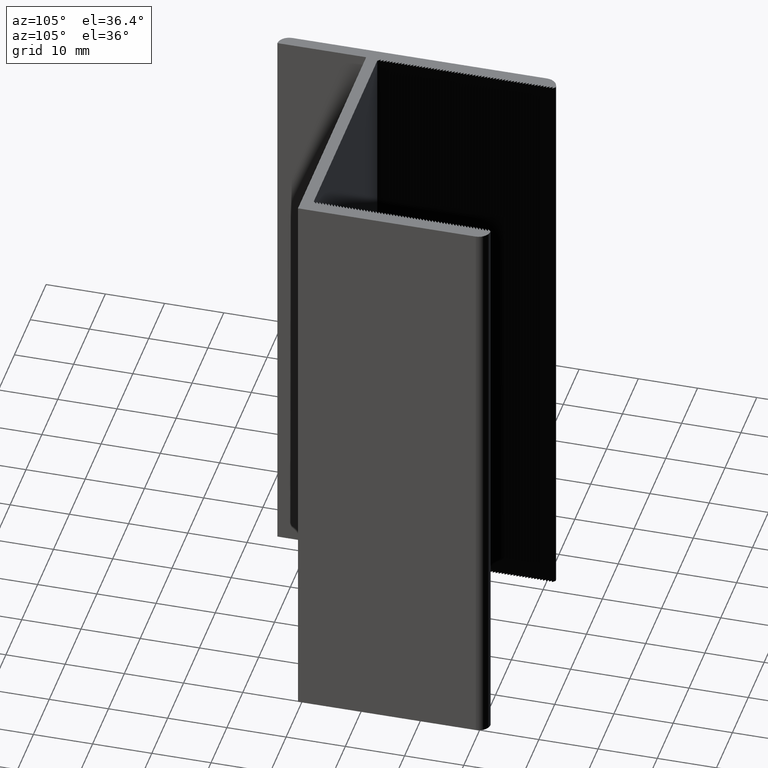
[diagram: clean part render]
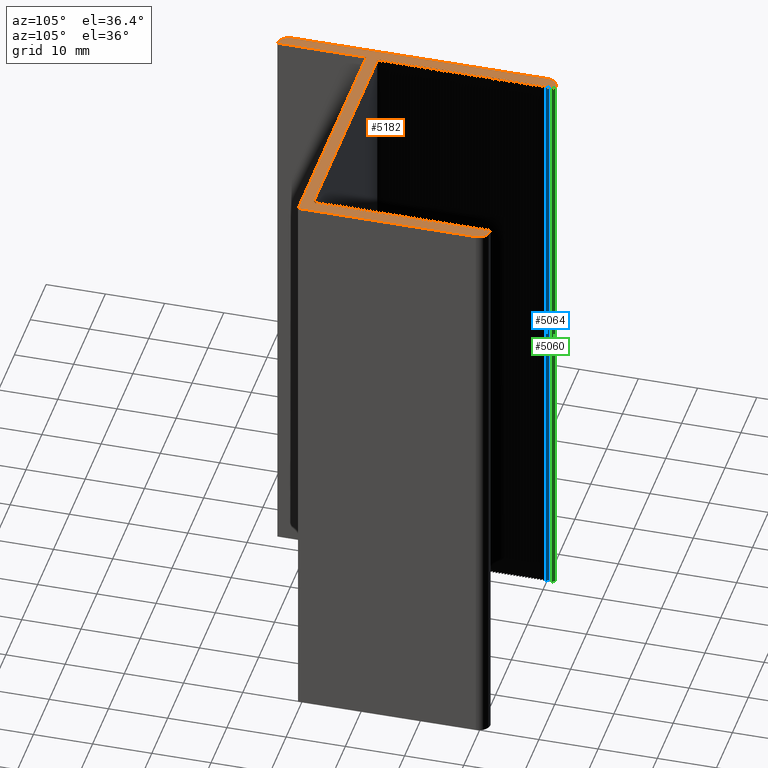
[diagram: same view with three faces highlighted in distinct colors, each labeled with its STEP entity id]
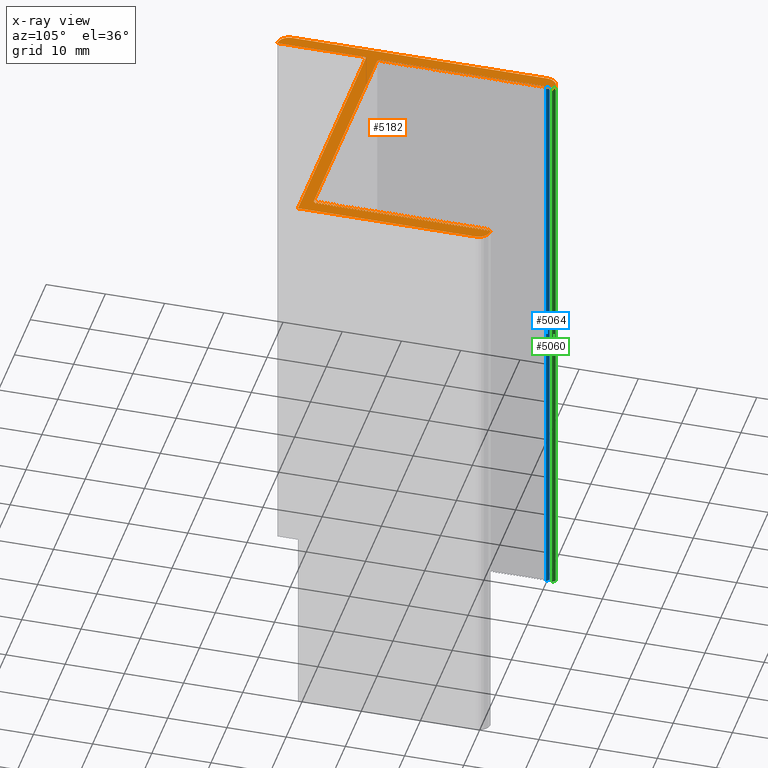
[diagram: x-ray of the same camera — body ghosted, the three highlighted faces saturated]
A machine part, auxiliary view with three faces highlighted in distinct colors.
The next image is the same camera in x-ray (body ghosted, the three faces saturated) — at least one of them is partly hidden behind the body in this view.
Their STEP definitions:

[orange] entity #5182 — the highlighted planar face has unit normal (0, 0, 1).
#16=CIRCLE('',#5305,2.);
#18=CIRCLE('',#5311,2.);
#20=CIRCLE('',#5315,2.);
#271=FACE_OUTER_BOUND('',#519,.T.);
#519=EDGE_LOOP('',(#4444,#4445,#4446,#4447,#4448,#4449,#4450,#4451,#4452,
#4453,#4454,#4455,#4456,#4457,#4458,#4459,#4460,#4461,#4462,#4463,#4464,
#4465,#4466,#4467,#4468,#4469,#4470,#4471,#4472,#4473,#4474,#4475,#4476,
#4477,#4478,#4479,#4480,#4481,#4482,#4483,#4484,#4485,#4486,#4487,#4488,
#4489,#4490,#4491,#4492,#4493,#4494,#4495,#4496,#4497,#4498,#4499,#4500,
#4501,#4502,#4503,#4504,#4505,#4506,#4507,#4508,#4509,#4510,#4511,#4512,
#4513,#4514,#4515,#4516,#4517,#4518,#4519,#4520,#4521,#4522,#4523,#4524,
#4525,#4526,#4527,#4528,#4529,#4530,#4531,#4532,#4533,#4534,#4535,#4536,
#4537,#4538,#4539,#4540,#4541,#4542,#4543,#4544,#4545,#4546,#4547,#4548,
#4549,#4550,#4551,#4552,#4553,#4554,#4555,#4556,#4557,#4558,#4559,#4560,
#4561,#4562,#4563,#4564,#4565,#4566,#4567,#4568,#4569,#4570,#4571,#4572,
#4573,#4574,#4575,#4576,#4577,#4578,#4579,#4580,#4581,#4582,#4583,#4584,
#4585,#4586,#4587,#4588,#4589,#4590,#4591,#4592,#4593,#4594,#4595,#4596,
#4597,#4598,#4599,#4600,#4601,#4602,#4603,#4604,#4605,#4606,#4607,#4608,
#4609,#4610,#4611,#4612,#4613,#4614,#4615,#4616,#4617,#4618,#4619,#4620,
#4621,#4622,#4623,#4624,#4625,#4626,#4627,#4628,#4629,#4630,#4631,#4632,
#4633,#4634,#4635,#4636,#4637,#4638,#4639,#4640,#4641,#4642,#4643,#4644,
#4645,#4646,#4647,#4648,#4649,#4650,#4651,#4652,#4653,#4654,#4655,#4656,
#4657,#4658,#4659,#4660,#4661,#4662,#4663,#4664,#4665,#4666,#4667,#4668,
#4669,#4670,#4671,#4672,#4673,#4674,#4675,#4676,#4677,#4678,#4679,#4680,
#4681,#4682,#4683,#4684,#4685,#4686,#4687,#4688,#4689));
#522=LINE('',#6689,#1254);
#525=LINE('',#6695,#1257);
#528=LINE('',#6701,#1260);
#531=LINE('',#6707,#1263);
#534=LINE('',#6713,#1266);
#537=LINE('',#6719,#1269);
#540=LINE('',#6725,#1272);
#543=LINE('',#6731,#1275);
#546=LINE('',#6737,#1278);
#549=LINE('',#6743,#1281);
#552=LINE('',#6749,#1284);
#555=LINE('',#6755,#1287);
#558=LINE('',#6761,#1290);
#561=LINE('',#6767,#1293);
#564=LINE('',#6773,#1296);
#567=LINE('',#6779,#1299);
#570=LINE('',#6785,#1302);
#573=LINE('',#6791,#1305);
#576=LINE('',#6797,#1308);
#579=LINE('',#6803,#1311);
#582=LINE('',#6809,#1314);
#585=LINE('',#6815,#1317);
#588=LINE('',#6821,#1320);
#591=LINE('',#6827,#1323);
#594=LINE('',#6833,#1326);
#597=LINE('',#6839,#1329);
#600=LINE('',#6845,#1332);
#603=LINE('',#6851,#1335);
#606=LINE('',#6857,#1338);
#609=LINE('',#6863,#1341);
#612=LINE('',#6869,#1344);
#615=LINE('',#6875,#1347);
#618=LINE('',#6881,#1350);
#621=LINE('',#6887,#1353);
#624=LINE('',#6893,#1356);
#627=LINE('',#6899,#1359);
#630=LINE('',#6905,#1362);
#633=LINE('',#6911,#1365);
#636=LINE('',#6917,#1368);
#639=LINE('',#6923,#1371);
#642=LINE('',#6929,#1374);
#645=LINE('',#6935,#1377);
#648=LINE('',#6941,#1380);
#651=LINE('',#6947,#1383);
#654=LINE('',#6953,#1386);
#657=LINE('',#6959,#1389);
#660=LINE('',#6965,#1392);
#663=LINE('',#6971,#1395);
#666=LINE('',#6977,#1398);
#669=LINE('',#6983,#1401);
#672=LINE('',#6989,#1404);
#675=LINE('',#6995,#1407);
#678=LINE('',#7001,#1410);
#681=LINE('',#7007,#1413);
#684=LINE('',#7013,#1416);
#687=LINE('',#7019,#1419);
#690=LINE('',#7025,#1422);
#693=LINE('',#7031,#1425);
#696=LINE('',#7037,#1428);
#699=LINE('',#7043,#1431);
#702=LINE('',#7049,#1434);
#705=LINE('',#7055,#1437);
#708=LINE('',#7061,#1440);
#711=LINE('',#7067,#1443);
#714=LINE('',#7073,#1446);
#717=LINE('',#7079,#1449);
#720=LINE('',#7085,#1452);
#723=LINE('',#7091,#1455);
#726=LINE('',#7097,#1458);
#729=LINE('',#7103,#1461);
#732=LINE('',#7109,#1464);
#735=LINE('',#7115,#1467);
#738=LINE('',#7121,#1470);
#741=LINE('',#7127,#1473);
#744=LINE('',#7133,#1476);
#747=LINE('',#7139,#1479);
#750=LINE('',#7145,#1482);
#753=LINE('',#7151,#1485);
#756=LINE('',#7157,#1488);
#759=LINE('',#7163,#1491);
#762=LINE('',#7169,#1494);
#765=LINE('',#7175,#1497);
#768=LINE('',#7181,#1500);
#771=LINE('',#7187,#1503);
#774=LINE('',#7193,#1506);
#777=LINE('',#7199,#1509);
#780=LINE('',#7205,#1512);
#783=LINE('',#7211,#1515);
#786=LINE('',#7217,#1518);
#789=LINE('',#7223,#1521);
#792=LINE('',#7229,#1524);
#795=LINE('',#7235,#1527);
#798=LINE('',#7241,#1530);
#801=LINE('',#7247,#1533);
#804=LINE('',#7253,#1536);
#807=LINE('',#7259,#1539);
#810=LINE('',#7265,#1542);
#813=LINE('',#7271,#1545);
#816=LINE('',#7277,#1548);
#819=LINE('',#7283,#1551);
#822=LINE('',#7289,#1554);
#825=LINE('',#7295,#1557);
#828=LINE('',#7301,#1560);
#831=LINE('',#7307,#1563);
#834=LINE('',#7313,#1566);
#837=LINE('',#7319,#1569);
#840=LINE('',#7325,#1572);
#843=LINE('',#7331,#1575);
#846=LINE('',#7337,#1578);
#849=LINE('',#7343,#1581);
#852=LINE('',#7349,#1584);
#855=LINE('',#7355,#1587);
#858=LINE('',#7361,#1590);
#861=LINE('',#7367,#1593);
#864=LINE('',#7373,#1596);
#867=LINE('',#7379,#1599);
#870=LINE('',#7385,#1602);
#873=LINE('',#7391,#1605);
#877=LINE('',#7403,#1609);
#880=LINE('',#7409,#1612);
#883=LINE('',#7415,#1615);
#887=LINE('',#7427,#1619);
#891=LINE('',#7439,#1623);
#894=LINE('',#7445,#1626);
#897=LINE('',#7451,#1629);
#900=LINE('',#7457,#1632);
#903=LINE('',#7463,#1635);
#906=LINE('',#7469,#1638);
#909=LINE('',#7475,#1641);
#912=LINE('',#7481,#1644);
#915=LINE('',#7487,#1647);
#918=LINE('',#7493,#1650);
#921=LINE('',#7499,#1653);
#924=LINE('',#7505,#1656);
#927=LINE('',#7511,#1659);
#930=LINE('',#7517,#1662);
#933=LINE('',#7523,#1665);
#936=LINE('',#7529,#1668);
#939=LINE('',#7535,#1671);
#942=LINE('',#7541,#1674);
#945=LINE('',#7547,#1677);
#948=LINE('',#7553,#1680);
#951=LINE('',#7559,#1683);
#954=LINE('',#7565,#1686);
#957=LINE('',#7571,#1689);
#960=LINE('',#7577,#1692);
#963=LINE('',#7583,#1695);
#966=LINE('',#7589,#1698);
#969=LINE('',#7595,#1701);
#972=LINE('',#7601,#1704);
#975=LINE('',#7607,#1707);
#978=LINE('',#7613,#1710);
#981=LINE('',#7619,#1713);
#984=LINE('',#7625,#1716);
#987=LINE('',#7631,#1719);
#990=LINE('',#7637,#1722);
#993=LINE('',#7643,#1725);
#996=LINE('',#7649,#1728);
#999=LINE('',#7655,#1731);
#1002=LINE('',#7661,#1734);
#1005=LINE('',#7667,#1737);
#1008=LINE('',#7673,#1740);
#1011=LINE('',#7679,#1743);
#1014=LINE('',#7685,#1746);
#1017=LINE('',#7691,#1749);
#1020=LINE('',#7697,#1752);
#1023=LINE('',#7703,#1755);
#1026=LINE('',#7709,#1758);
#1029=LINE('',#7715,#1761);
#1032=LINE('',#7721,#1764);
#1035=LINE('',#7727,#1767);
#1038=LINE('',#7733,#1770);
#1041=LINE('',#7739,#1773);
#1044=LINE('',#7745,#1776);
#1047=LINE('',#7751,#1779);
#1050=LINE('',#7757,#1782);
#1053=LINE('',#7763,#1785);
#1056=LINE('',#7769,#1788);
#1059=LINE('',#7775,#1791);
#1062=LINE('',#7781,#1794);
#1065=LINE('',#7787,#1797);
#1068=LINE('',#7793,#1800);
#1071=LINE('',#7799,#1803);
#1074=LINE('',#7805,#1806);
#1077=LINE('',#7811,#1809);
#1080=LINE('',#7817,#1812);
#1083=LINE('',#7823,#1815);
#1086=LINE('',#7829,#1818);
#1089=LINE('',#7835,#1821);
#1092=LINE('',#7841,#1824);
#1095=LINE('',#7847,#1827);
#1098=LINE('',#7853,#1830);
#1101=LINE('',#7859,#1833);
#1104=LINE('',#7865,#1836);
#1107=LINE('',#7871,#1839);
#1110=LINE('',#7877,#1842);
#1113=LINE('',#7883,#1845);
#1116=LINE('',#7889,#1848);
#1119=LINE('',#7895,#1851);
#1122=LINE('',#7901,#1854);
#1125=LINE('',#7907,#1857);
#1128=LINE('',#7913,#1860);
#1131=LINE('',#7919,#1863);
#1134=LINE('',#7925,#1866);
#1137=LINE('',#7931,#1869);
#1140=LINE('',#7937,#1872);
#1143=LINE('',#7943,#1875);
#1146=LINE('',#7949,#1878);
#1149=LINE('',#7955,#1881);
#1152=LINE('',#7961,#1884);
#1155=LINE('',#7967,#1887);
#1158=LINE('',#7973,#1890);
#1161=LINE('',#7979,#1893);
#1164=LINE('',#7985,#1896);
#1167=LINE('',#7991,#1899);
#1170=LINE('',#7997,#1902);
#1173=LINE('',#8003,#1905);
#1176=LINE('',#8009,#1908);
#1179=LINE('',#8015,#1911);
#1182=LINE('',#8021,#1914);
#1185=LINE('',#8027,#1917);
#1188=LINE('',#8033,#1920);
#1191=LINE('',#8039,#1923);
#1194=LINE('',#8045,#1926);
#1197=LINE('',#8051,#1929);
#1200=LINE('',#8057,#1932);
#1203=LINE('',#8063,#1935);
#1206=LINE('',#8069,#1938);
#1209=LINE('',#8075,#1941);
#1212=LINE('',#8081,#1944);
#1215=LINE('',#8087,#1947);
#1218=LINE('',#8093,#1950);
#1221=LINE('',#8099,#1953);
#1224=LINE('',#8105,#1956);
#1227=LINE('',#8111,#1959);
#1230=LINE('',#8117,#1962);
#1233=LINE('',#8123,#1965);
#1236=LINE('',#8129,#1968);
#1239=LINE('',#8135,#1971);
#1242=LINE('',#8141,#1974);
#1245=LINE('',#8147,#1977);
#1248=LINE('',#8153,#1980);
#1251=LINE('',#8157,#1983);
#1254=VECTOR('',#5445,0.499999999999998);
#1257=VECTOR('',#5450,0.707106781186548);
#1260=VECTOR('',#5455,0.499999999999998);
#1263=VECTOR('',#5460,0.707106781186545);
#1266=VECTOR('',#5465,0.499999999999998);
#1269=VECTOR('',#5470,0.707106781186548);
#1272=VECTOR('',#5475,0.499999999999998);
#1275=VECTOR('',#5480,0.707106781186545);
#1278=VECTOR('',#5485,0.499999999999998);
#1281=VECTOR('',#5490,0.707106781186545);
#1284=VECTOR('',#5495,0.499999999999998);
#1287=VECTOR('',#5500,0.707106781186548);
#1290=VECTOR('',#5505,0.499999999999998);
#1293=VECTOR('',#5510,0.707106781186545);
#1296=VECTOR('',#5515,0.499999999999998);
#1299=VECTOR('',#5520,0.707106781186548);
#1302=VECTOR('',#5525,0.499999999999998);
#1305=VECTOR('',#5530,0.707106781186542);
#1308=VECTOR('',#5535,0.499999999999998);
#1311=VECTOR('',#5540,0.707106781186545);
#1314=VECTOR('',#5545,0.499999999999998);
#1317=VECTOR('',#5550,0.707106781186547);
#1320=VECTOR('',#5555,0.499999999999998);
#1323=VECTOR('',#5560,0.707106781186543);
#1326=VECTOR('',#5565,0.499999999999998);
#1329=VECTOR('',#5570,0.707106781186547);
#1332=VECTOR('',#5575,0.499999999999998);
#1335=VECTOR('',#5580,0.707106781186543);
#1338=VECTOR('',#5585,0.499999999999998);
#1341=VECTOR('',#5590,0.70710678118655);
#1344=VECTOR('',#5595,0.499999999999998);
#1347=VECTOR('',#5600,0.707106781186543);
#1350=VECTOR('',#5605,0.499999999999998);
#1353=VECTOR('',#5610,0.707106781186543);
#1356=VECTOR('',#5615,0.499999999999998);
#1359=VECTOR('',#5620,0.70710678118655);
#1362=VECTOR('',#5625,0.499999999999998);
#1365=VECTOR('',#5630,0.707106781186545);
#1368=VECTOR('',#5635,0.499999999999998);
#1371=VECTOR('',#5640,0.707106781186545);
#1374=VECTOR('',#5645,0.499999999999998);
#1377=VECTOR('',#5650,0.707106781186547);
#1380=VECTOR('',#5655,0.499999999999998);
#1383=VECTOR('',#5660,0.707106781186545);
#1386=VECTOR('',#5665,0.499999999999998);
#1389=VECTOR('',#5670,0.707106781186547);
#1392=VECTOR('',#5675,0.499999999999998);
#1395=VECTOR('',#5680,0.707106781186545);
#1398=VECTOR('',#5685,0.499999999999998);
#1401=VECTOR('',#5690,0.707106781186545);
#1404=VECTOR('',#5695,0.499999999999998);
#1407=VECTOR('',#5700,0.707106781186547);
#1410=VECTOR('',#5705,0.499999999999998);
#1413=VECTOR('',#5710,0.707106781186545);
#1416=VECTOR('',#5715,0.499999999999998);
#1419=VECTOR('',#5720,0.707106781186547);
#1422=VECTOR('',#5725,0.499999999999998);
#1425=VECTOR('',#5730,0.707106781186545);
#1428=VECTOR('',#5735,0.499999999999998);
#1431=VECTOR('',#5740,0.707106781186547);
#1434=VECTOR('',#5745,0.499999999999998);
#1437=VECTOR('',#5750,0.707106781186545);
#1440=VECTOR('',#5755,0.499999999999998);
#1443=VECTOR('',#5760,0.707106781186547);
#1446=VECTOR('',#5765,0.499999999999998);
#1449=VECTOR('',#5770,0.707106781186545);
#1452=VECTOR('',#5775,0.499999999999998);
#1455=VECTOR('',#5780,0.707106781186545);
#1458=VECTOR('',#5785,0.499999999999998);
#1461=VECTOR('',#5790,0.707106781186545);
#1464=VECTOR('',#5795,0.499999999999998);
#1467=VECTOR('',#5800,0.707106781186545);
#1470=VECTOR('',#5805,0.499999999999998);
#1473=VECTOR('',#5810,0.707106781186548);
#1476=VECTOR('',#5815,0.499999999999998);
#1479=VECTOR('',#5820,0.707106781186545);
#1482=VECTOR('',#5825,0.499999999999998);
#1485=VECTOR('',#5830,0.707106781186545);
#1488=VECTOR('',#5835,0.499999999999998);
#1491=VECTOR('',#5840,0.707106781186548);
#1494=VECTOR('',#5845,0.499999999999998);
#1497=VECTOR('',#5850,0.707106781186542);
#1500=VECTOR('',#5855,0.499999999999998);
#1503=VECTOR('',#5860,0.707106781186545);
#1506=VECTOR('',#5865,0.499999999999998);
#1509=VECTOR('',#5870,0.707106781186545);
#1512=VECTOR('',#5875,0.499999999999998);
#1515=VECTOR('',#5880,0.707106781186545);
#1518=VECTOR('',#5885,0.499999999999998);
#1521=VECTOR('',#5890,0.707106781186548);
#1524=VECTOR('',#5895,0.499999999999998);
#1527=VECTOR('',#5900,0.707106781186545);
#1530=VECTOR('',#5905,0.499999999999998);
#1533=VECTOR('',#5910,0.707106781186545);
#1536=VECTOR('',#5915,0.499999999999998);
#1539=VECTOR('',#5920,0.707106781186545);
#1542=VECTOR('',#5925,0.499999999999998);
#1545=VECTOR('',#5930,0.707106781186545);
#1548=VECTOR('',#5935,0.499999999999998);
#1551=VECTOR('',#5940,0.707106781186548);
#1554=VECTOR('',#5945,0.499999999999998);
#1557=VECTOR('',#5950,0.707106781186545);
#1560=VECTOR('',#5955,0.499999999999998);
#1563=VECTOR('',#5960,0.707106781186545);
#1566=VECTOR('',#5965,0.499999999999998);
#1569=VECTOR('',#5970,0.707106781186545);
#1572=VECTOR('',#5975,0.499999999999998);
#1575=VECTOR('',#5980,0.707106781186545);
#1578=VECTOR('',#5985,0.499999999999998);
#1581=VECTOR('',#5990,0.707106781186548);
#1584=VECTOR('',#5995,0.499999999999998);
#1587=VECTOR('',#6000,0.707106781186548);
#1590=VECTOR('',#6005,0.499999999999998);
#1593=VECTOR('',#6010,0.707106781186545);
#1596=VECTOR('',#6015,0.499999999999998);
#1599=VECTOR('',#6020,0.707106781186545);
#1602=VECTOR('',#6025,0.499999999999998);
#1605=VECTOR('',#6030,0.707106781186548);
#1609=VECTOR('',#6042,30.);
#1612=VECTOR('',#6047,43.);
#1615=VECTOR('',#6052,15.);
#1619=VECTOR('',#6064,43.);
#1623=VECTOR('',#6076,0.707106781186545);
#1626=VECTOR('',#6081,0.499999999999998);
#1629=VECTOR('',#6086,0.707106781186545);
#1632=VECTOR('',#6091,0.499999999999998);
#1635=VECTOR('',#6096,0.707106781186545);
#1638=VECTOR('',#6101,0.499999999999998);
#1641=VECTOR('',#6106,0.707106781186548);
#1644=VECTOR('',#6111,0.499999999999998);
#1647=VECTOR('',#6116,0.707106781186548);
#1650=VECTOR('',#6121,0.499999999999998);
#1653=VECTOR('',#6126,0.707106781186545);
#1656=VECTOR('',#6131,0.499999999999998);
#1659=VECTOR('',#6136,0.707106781186545);
#1662=VECTOR('',#6141,0.499999999999998);
#1665=VECTOR('',#6146,0.707106781186548);
#1668=VECTOR('',#6151,0.499999999999998);
#1671=VECTOR('',#6156,0.707106781186545);
#1674=VECTOR('',#6161,0.499999999999998);
#1677=VECTOR('',#6166,0.707106781186548);
#1680=VECTOR('',#6171,0.499999999999998);
#1683=VECTOR('',#6176,0.707106781186545);
#1686=VECTOR('',#6181,0.499999999999998);
#1689=VECTOR('',#6186,0.707106781186545);
#1692=VECTOR('',#6191,0.499999999999998);
#1695=VECTOR('',#6196,0.707106781186548);
#1698=VECTOR('',#6201,0.499999999999998);
#1701=VECTOR('',#6206,0.707106781186545);
#1704=VECTOR('',#6211,0.499999999999998);
#1707=VECTOR('',#6216,0.707106781186548);
#1710=VECTOR('',#6221,0.499999999999998);
#1713=VECTOR('',#6226,0.707106781186545);
#1716=VECTOR('',#6231,0.499999999999998);
#1719=VECTOR('',#6236,0.707106781186545);
#1722=VECTOR('',#6241,0.499999999999998);
#1725=VECTOR('',#6246,0.707106781186548);
#1728=VECTOR('',#6251,0.499999999999998);
#1731=VECTOR('',#6256,0.707106781186545);
#1734=VECTOR('',#6261,0.499999999999998);
#1737=VECTOR('',#6266,0.707106781186548);
#1740=VECTOR('',#6271,0.499999999999998);
#1743=VECTOR('',#6276,0.707106781186545);
#1746=VECTOR('',#6281,0.499999999999998);
#1749=VECTOR('',#6286,0.707106781186545);
#1752=VECTOR('',#6291,0.499999999999998);
#1755=VECTOR('',#6296,0.707106781186548);
#1758=VECTOR('',#6301,0.499999999999998);
#1761=VECTOR('',#6306,0.707106781186545);
#1764=VECTOR('',#6311,0.499999999999998);
#1767=VECTOR('',#6316,0.707106781186548);
#1770=VECTOR('',#6321,0.499999999999998);
#1773=VECTOR('',#6326,0.707106781186545);
#1776=VECTOR('',#6331,0.499999999999998);
#1779=VECTOR('',#6336,0.707106781186545);
#1782=VECTOR('',#6341,0.499999999999998);
#1785=VECTOR('',#6346,0.707106781186548);
#1788=VECTOR('',#6351,0.499999999999998);
#1791=VECTOR('',#6356,0.707106781186545);
#1794=VECTOR('',#6361,0.499999999999998);
#1797=VECTOR('',#6366,0.707106781186548);
#1800=VECTOR('',#6371,0.499999999999998);
#1803=VECTOR('',#6376,0.707106781186545);
#1806=VECTOR('',#6381,0.499999999999998);
#1809=VECTOR('',#6386,0.707106781186545);
#1812=VECTOR('',#6391,0.499999999999998);
#1815=VECTOR('',#6396,0.707106781186548);
#1818=VECTOR('',#6401,0.499999999999998);
#1821=VECTOR('',#6406,0.707106781186545);
#1824=VECTOR('',#6411,0.499999999999998);
#1827=VECTOR('',#6416,0.707106781186548);
#1830=VECTOR('',#6421,0.499999999999989);
#1833=VECTOR('',#6426,0.707106781186539);
#1836=VECTOR('',#6431,0.499999999999989);
#1839=VECTOR('',#6436,0.707106781186539);
#1842=VECTOR('',#6441,0.499999999999989);
#1845=VECTOR('',#6446,0.707106781186542);
#1848=VECTOR('',#6451,0.499999999999989);
#1851=VECTOR('',#6456,0.707106781186539);
#1854=VECTOR('',#6461,0.499999999999989);
#1857=VECTOR('',#6466,0.707106781186542);
#1860=VECTOR('',#6471,0.499999999999989);
#1863=VECTOR('',#6476,0.707106781186539);
#1866=VECTOR('',#6481,0.499999999999989);
#1869=VECTOR('',#6486,0.707106781186542);
#1872=VECTOR('',#6491,0.499999999999989);
#1875=VECTOR('',#6496,0.707106781186539);
#1878=VECTOR('',#6501,0.499999999999989);
#1881=VECTOR('',#6506,0.707106781186539);
#1884=VECTOR('',#6511,0.499999999999989);
#1887=VECTOR('',#6516,0.707106781186542);
#1890=VECTOR('',#6521,0.499999999999989);
#1893=VECTOR('',#6526,0.707106781186539);
#1896=VECTOR('',#6531,0.499999999999989);
#1899=VECTOR('',#6536,0.707106781186542);
#1902=VECTOR('',#6541,0.499999999999989);
#1905=VECTOR('',#6546,0.707106781186539);
#1908=VECTOR('',#6551,0.499999999999989);
#1911=VECTOR('',#6556,0.707106781186542);
#1914=VECTOR('',#6561,0.499999999999989);
#1917=VECTOR('',#6566,0.707106781186539);
#1920=VECTOR('',#6571,0.499999999999989);
#1923=VECTOR('',#6576,0.707106781186539);
#1926=VECTOR('',#6581,0.499999999999989);
#1929=VECTOR('',#6586,0.707106781186542);
#1932=VECTOR('',#6591,0.499999999999989);
#1935=VECTOR('',#6596,0.707106781186539);
#1938=VECTOR('',#6601,0.499999999999989);
#1941=VECTOR('',#6606,0.707106781186542);
#1944=VECTOR('',#6611,0.499999999999989);
#1947=VECTOR('',#6616,0.707106781186539);
#1950=VECTOR('',#6621,0.499999999999989);
#1953=VECTOR('',#6626,0.707106781186539);
#1956=VECTOR('',#6631,0.499999999999989);
#1959=VECTOR('',#6636,0.707106781186542);
#1962=VECTOR('',#6641,0.499999999999989);
#1965=VECTOR('',#6646,0.707106781186539);
#1968=VECTOR('',#6651,0.499999999999989);
#1971=VECTOR('',#6656,0.707106781186542);
#1974=VECTOR('',#6661,0.499999999999989);
#1977=VECTOR('',#6666,0.707106781186539);
#1980=VECTOR('',#6671,40.);
#1983=VECTOR('',#6676,0.707106781186545);
#1986=VERTEX_POINT('',#6686);
#1987=VERTEX_POINT('',#6688);
#1989=VERTEX_POINT('',#6694);
#1991=VERTEX_POINT('',#6700);
#1993=VERTEX_POINT('',#6706);
#1995=VERTEX_POINT('',#6712);
#1997=VERTEX_POINT('',#6718);
#1999=VERTEX_POINT('',#6724);
#2001=VERTEX_POINT('',#6730);
#2003=VERTEX_POINT('',#6736);
#2005=VERTEX_POINT('',#6742);
#2007=VERTEX_POINT('',#6748);
#2009=VERTEX_POINT('',#6754);
#2011=VERTEX_POINT('',#6760);
#2013=VERTEX_POINT('',#6766);
#2015=VERTEX_POINT('',#6772);
#2017=VERTEX_POINT('',#6778);
#2019=VERTEX_POINT('',#6784);
#2021=VERTEX_POINT('',#6790);
#2023=VERTEX_POINT('',#6796);
#2025=VERTEX_POINT('',#6802);
#2027=VERTEX_POINT('',#6808);
#2029=VERTEX_POINT('',#6814);
#2031=VERTEX_POINT('',#6820);
#2033=VERTEX_POINT('',#6826);
#2035=VERTEX_POINT('',#6832);
#2037=VERTEX_POINT('',#6838);
#2039=VERTEX_POINT('',#6844);
#2041=VERTEX_POINT('',#6850);
#2043=VERTEX_POINT('',#6856);
#2045=VERTEX_POINT('',#6862);
#2047=VERTEX_POINT('',#6868);
#2049=VERTEX_POINT('',#6874);
#2051=VERTEX_POINT('',#6880);
#2053=VERTEX_POINT('',#6886);
#2055=VERTEX_POINT('',#6892);
#2057=VERTEX_POINT('',#6898);
#2059=VERTEX_POINT('',#6904);
#2061=VERTEX_POINT('',#6910);
#2063=VERTEX_POINT('',#6916);
#2065=VERTEX_POINT('',#6922);
#2067=VERTEX_POINT('',#6928);
#2069=VERTEX_POINT('',#6934);
#2071=VERTEX_POINT('',#6940);
#2073=VERTEX_POINT('',#6946);
#2075=VERTEX_POINT('',#6952);
#2077=VERTEX_POINT('',#6958);
#2079=VERTEX_POINT('',#6964);
#2081=VERTEX_POINT('',#6970);
#2083=VERTEX_POINT('',#6976);
#2085=VERTEX_POINT('',#6982);
#2087=VERTEX_POINT('',#6988);
#2089=VERTEX_POINT('',#6994);
#2091=VERTEX_POINT('',#7000);
#2093=VERTEX_POINT('',#7006);
#2095=VERTEX_POINT('',#7012);
#2097=VERTEX_POINT('',#7018);
#2099=VERTEX_POINT('',#7024);
#2101=VERTEX_POINT('',#7030);
#2103=VERTEX_POINT('',#7036);
#2105=VERTEX_POINT('',#7042);
#2107=VERTEX_POINT('',#7048);
#2109=VERTEX_POINT('',#7054);
#2111=VERTEX_POINT('',#7060);
#2113=VERTEX_POINT('',#7066);
#2115=VERTEX_POINT('',#7072);
#2117=VERTEX_POINT('',#7078);
#2119=VERTEX_POINT('',#7084);
#2121=VERTEX_POINT('',#7090);
#2123=VERTEX_POINT('',#7096);
#2125=VERTEX_POINT('',#7102);
#2127=VERTEX_POINT('',#7108);
#2129=VERTEX_POINT('',#7114);
#2131=VERTEX_POINT('',#7120);
#2133=VERTEX_POINT('',#7126);
#2135=VERTEX_POINT('',#7132);
#2137=VERTEX_POINT('',#7138);
#2139=VERTEX_POINT('',#7144);
#2141=VERTEX_POINT('',#7150);
#2143=VERTEX_POINT('',#7156);
#2145=VERTEX_POINT('',#7162);
#2147=VERTEX_POINT('',#7168);
#2149=VERTEX_POINT('',#7174);
#2151=VERTEX_POINT('',#7180);
#2153=VERTEX_POINT('',#7186);
#2155=VERTEX_POINT('',#7192);
#2157=VERTEX_POINT('',#7198);
#2159=VERTEX_POINT('',#7204);
#2161=VERTEX_POINT('',#7210);
#2163=VERTEX_POINT('',#7216);
#2165=VERTEX_POINT('',#7222);
#2167=VERTEX_POINT('',#7228);
#2169=VERTEX_POINT('',#7234);
#2171=VERTEX_POINT('',#7240);
#2173=VERTEX_POINT('',#7246);
#2175=VERTEX_POINT('',#7252);
#2177=VERTEX_POINT('',#7258);
#2179=VERTEX_POINT('',#7264);
#2181=VERTEX_POINT('',#7270);
#2183=VERTEX_POINT('',#7276);
#2185=VERTEX_POINT('',#7282);
#2187=VERTEX_POINT('',#7288);
#2189=VERTEX_POINT('',#7294);
#2191=VERTEX_POINT('',#7300);
#2193=VERTEX_POINT('',#7306);
#2195=VERTEX_POINT('',#7312);
#2197=VERTEX_POINT('',#7318);
#2199=VERTEX_POINT('',#7324);
#2201=VERTEX_POINT('',#7330);
#2203=VERTEX_POINT('',#7336);
#2205=VERTEX_POINT('',#7342);
#2207=VERTEX_POINT('',#7348);
#2209=VERTEX_POINT('',#7354);
#2211=VERTEX_POINT('',#7360);
#2213=VERTEX_POINT('',#7366);
#2215=VERTEX_POINT('',#7372);
#2217=VERTEX_POINT('',#7378);
#2219=VERTEX_POINT('',#7384);
#2221=VERTEX_POINT('',#7390);
#2223=VERTEX_POINT('',#7396);
#2225=VERTEX_POINT('',#7402);
#2227=VERTEX_POINT('',#7408);
#2229=VERTEX_POINT('',#7414);
#2231=VERTEX_POINT('',#7420);
#2233=VERTEX_POINT('',#7426);
#2235=VERTEX_POINT('',#7432);
#2237=VERTEX_POINT('',#7438);
#2239=VERTEX_POINT('',#7444);
#2241=VERTEX_POINT('',#7450);
#2243=VERTEX_POINT('',#7456);
#2245=VERTEX_POINT('',#7462);
#2247=VERTEX_POINT('',#7468);
#2249=VERTEX_POINT('',#7474);
#2251=VERTEX_POINT('',#7480);
#2253=VERTEX_POINT('',#7486);
#2255=VERTEX_POINT('',#7492);
#2257=VERTEX_POINT('',#7498);
#2259=VERTEX_POINT('',#7504);
#2261=VERTEX_POINT('',#7510);
#2263=VERTEX_POINT('',#7516);
#2265=VERTEX_POINT('',#7522);
#2267=VERTEX_POINT('',#7528);
#2269=VERTEX_POINT('',#7534);
#2271=VERTEX_POINT('',#7540);
#2273=VERTEX_POINT('',#7546);
#2275=VERTEX_POINT('',#7552);
#2277=VERTEX_POINT('',#7558);
#2279=VERTEX_POINT('',#7564);
#2281=VERTEX_POINT('',#7570);
#2283=VERTEX_POINT('',#7576);
#2285=VERTEX_POINT('',#7582);
#2287=VERTEX_POINT('',#7588);
#2289=VERTEX_POINT('',#7594);
#2291=VERTEX_POINT('',#7600);
#2293=VERTEX_POINT('',#7606);
#2295=VERTEX_POINT('',#7612);
#2297=VERTEX_POINT('',#7618);
#2299=VERTEX_POINT('',#7624);
#2301=VERTEX_POINT('',#7630);
#2303=VERTEX_POINT('',#7636);
#2305=VERTEX_POINT('',#7642);
#2307=VERTEX_POINT('',#7648);
#2309=VERTEX_POINT('',#7654);
#2311=VERTEX_POINT('',#7660);
#2313=VERTEX_POINT('',#7666);
#2315=VERTEX_POINT('',#7672);
#2317=VERTEX_POINT('',#7678);
#2319=VERTEX_POINT('',#7684);
#2321=VERTEX_POINT('',#7690);
#2323=VERTEX_POINT('',#7696);
#2325=VERTEX_POINT('',#7702);
#2327=VERTEX_POINT('',#7708);
#2329=VERTEX_POINT('',#7714);
#2331=VERTEX_POINT('',#7720);
#2333=VERTEX_POINT('',#7726);
#2335=VERTEX_POINT('',#7732);
#2337=VERTEX_POINT('',#7738);
#2339=VERTEX_POINT('',#7744);
#2341=VERTEX_POINT('',#7750);
#2343=VERTEX_POINT('',#7756);
#2345=VERTEX_POINT('',#7762);
#2347=VERTEX_POINT('',#7768);
#2349=VERTEX_POINT('',#7774);
#2351=VERTEX_POINT('',#7780);
#2353=VERTEX_POINT('',#7786);
#2355=VERTEX_POINT('',#7792);
#2357=VERTEX_POINT('',#7798);
#2359=VERTEX_POINT('',#7804);
#2361=VERTEX_POINT('',#7810);
#2363=VERTEX_POINT('',#7816);
#2365=VERTEX_POINT('',#7822);
#2367=VERTEX_POINT('',#7828);
#2369=VERTEX_POINT('',#7834);
#2371=VERTEX_POINT('',#7840);
#2373=VERTEX_POINT('',#7846);
#2375=VERTEX_POINT('',#7852);
#2377=VERTEX_POINT('',#7858);
#2379=VERTEX_POINT('',#7864);
#2381=VERTEX_POINT('',#7870);
#2383=VERTEX_POINT('',#7876);
#2385=VERTEX_POINT('',#7882);
#2387=VERTEX_POINT('',#7888);
#2389=VERTEX_POINT('',#7894);
#2391=VERTEX_POINT('',#7900);
#2393=VERTEX_POINT('',#7906);
#2395=VERTEX_POINT('',#7912);
#2397=VERTEX_POINT('',#7918);
#2399=VERTEX_POINT('',#7924);
#2401=VERTEX_POINT('',#7930);
#2403=VERTEX_POINT('',#7936);
#2405=VERTEX_POINT('',#7942);
#2407=VERTEX_POINT('',#7948);
#2409=VERTEX_POINT('',#7954);
#2411=VERTEX_POINT('',#7960);
#2413=VERTEX_POINT('',#7966);
#2415=VERTEX_POINT('',#7972);
#2417=VERTEX_POINT('',#7978);
#2419=VERTEX_POINT('',#7984);
#2421=VERTEX_POINT('',#7990);
#2423=VERTEX_POINT('',#7996);
#2425=VERTEX_POINT('',#8002);
#2427=VERTEX_POINT('',#8008);
#2429=VERTEX_POINT('',#8014);
#2431=VERTEX_POINT('',#8020);
#2433=VERTEX_POINT('',#8026);
#2435=VERTEX_POINT('',#8032);
#2437=VERTEX_POINT('',#8038);
#2439=VERTEX_POINT('',#8044);
#2441=VERTEX_POINT('',#8050);
#2443=VERTEX_POINT('',#8056);
#2445=VERTEX_POINT('',#8062);
#2447=VERTEX_POINT('',#8068);
#2449=VERTEX_POINT('',#8074);
#2451=VERTEX_POINT('',#8080);
#2453=VERTEX_POINT('',#8086);
#2455=VERTEX_POINT('',#8092);
#2457=VERTEX_POINT('',#8098);
#2459=VERTEX_POINT('',#8104);
#2461=VERTEX_POINT('',#8110);
#2463=VERTEX_POINT('',#8116);
#2465=VERTEX_POINT('',#8122);
#2467=VERTEX_POINT('',#8128);
#2469=VERTEX_POINT('',#8134);
#2471=VERTEX_POINT('',#8140);
#2473=VERTEX_POINT('',#8146);
#2475=VERTEX_POINT('',#8152);
#2478=EDGE_CURVE('',#1987,#1986,#522,.T.);
#2481=EDGE_CURVE('',#1989,#1987,#525,.T.);
#2484=EDGE_CURVE('',#1991,#1989,#528,.T.);
#2487=EDGE_CURVE('',#1993,#1991,#531,.T.);
#2490=EDGE_CURVE('',#1995,#1993,#534,.T.);
#2493=EDGE_CURVE('',#1997,#1995,#537,.T.);
#2496=EDGE_CURVE('',#1999,#1997,#540,.T.);
#2499=EDGE_CURVE('',#2001,#1999,#543,.T.);
#2502=EDGE_CURVE('',#2003,#2001,#546,.T.);
#2505=EDGE_CURVE('',#2005,#2003,#549,.T.);
#2508=EDGE_CURVE('',#2007,#2005,#552,.T.);
#2511=EDGE_CURVE('',#2009,#2007,#555,.T.);
#2514=EDGE_CURVE('',#2011,#2009,#558,.T.);
#2517=EDGE_CURVE('',#2013,#2011,#561,.T.);
#2520=EDGE_CURVE('',#2015,#2013,#564,.T.);
#2523=EDGE_CURVE('',#2017,#2015,#567,.T.);
#2526=EDGE_CURVE('',#2019,#2017,#570,.T.);
#2529=EDGE_CURVE('',#2021,#2019,#573,.T.);
#2532=EDGE_CURVE('',#2023,#2021,#576,.T.);
#2535=EDGE_CURVE('',#2025,#2023,#579,.T.);
#2538=EDGE_CURVE('',#2027,#2025,#582,.T.);
#2541=EDGE_CURVE('',#2029,#2027,#585,.T.);
#2544=EDGE_CURVE('',#2031,#2029,#588,.T.);
#2547=EDGE_CURVE('',#2033,#2031,#591,.T.);
#2550=EDGE_CURVE('',#2035,#2033,#594,.T.);
#2553=EDGE_CURVE('',#2037,#2035,#597,.T.);
#2556=EDGE_CURVE('',#2039,#2037,#600,.T.);
#2559=EDGE_CURVE('',#2041,#2039,#603,.T.);
#2562=EDGE_CURVE('',#2043,#2041,#606,.T.);
#2565=EDGE_CURVE('',#2045,#2043,#609,.T.);
#2568=EDGE_CURVE('',#2047,#2045,#612,.T.);
#2571=EDGE_CURVE('',#2049,#2047,#615,.T.);
#2574=EDGE_CURVE('',#2051,#2049,#618,.T.);
#2577=EDGE_CURVE('',#2053,#2051,#621,.T.);
#2580=EDGE_CURVE('',#2055,#2053,#624,.T.);
#2583=EDGE_CURVE('',#2057,#2055,#627,.T.);
#2586=EDGE_CURVE('',#2059,#2057,#630,.T.);
#2589=EDGE_CURVE('',#2061,#2059,#633,.T.);
#2592=EDGE_CURVE('',#2063,#2061,#636,.T.);
#2595=EDGE_CURVE('',#2065,#2063,#639,.T.);
#2598=EDGE_CURVE('',#2067,#2065,#642,.T.);
#2601=EDGE_CURVE('',#2069,#2067,#645,.T.);
#2604=EDGE_CURVE('',#2071,#2069,#648,.T.);
#2607=EDGE_CURVE('',#2073,#2071,#651,.T.);
#2610=EDGE_CURVE('',#2075,#2073,#654,.T.);
#2613=EDGE_CURVE('',#2077,#2075,#657,.T.);
#2616=EDGE_CURVE('',#2079,#2077,#660,.T.);
#2619=EDGE_CURVE('',#2081,#2079,#663,.T.);
#2622=EDGE_CURVE('',#2083,#2081,#666,.T.);
#2625=EDGE_CURVE('',#2085,#2083,#669,.T.);
#2628=EDGE_CURVE('',#2087,#2085,#672,.T.);
#2631=EDGE_CURVE('',#2089,#2087,#675,.T.);
#2634=EDGE_CURVE('',#2091,#2089,#678,.T.);
#2637=EDGE_CURVE('',#2093,#2091,#681,.T.);
#2640=EDGE_CURVE('',#2095,#2093,#684,.T.);
#2643=EDGE_CURVE('',#2097,#2095,#687,.T.);
#2646=EDGE_CURVE('',#2099,#2097,#690,.T.);
#2649=EDGE_CURVE('',#2101,#2099,#693,.T.);
#2652=EDGE_CURVE('',#2103,#2101,#696,.T.);
#2655=EDGE_CURVE('',#2105,#2103,#699,.T.);
#2658=EDGE_CURVE('',#2107,#2105,#702,.T.);
#2661=EDGE_CURVE('',#2109,#2107,#705,.T.);
#2664=EDGE_CURVE('',#2111,#2109,#708,.T.);
#2667=EDGE_CURVE('',#2113,#2111,#711,.T.);
#2670=EDGE_CURVE('',#2115,#2113,#714,.T.);
#2673=EDGE_CURVE('',#2117,#2115,#717,.T.);
#2676=EDGE_CURVE('',#2119,#2117,#720,.T.);
#2679=EDGE_CURVE('',#2121,#2119,#723,.T.);
#2682=EDGE_CURVE('',#2123,#2121,#726,.T.);
#2685=EDGE_CURVE('',#2125,#2123,#729,.T.);
#2688=EDGE_CURVE('',#2127,#2125,#732,.T.);
#2691=EDGE_CURVE('',#2129,#2127,#735,.T.);
#2694=EDGE_CURVE('',#2131,#2129,#738,.T.);
#2697=EDGE_CURVE('',#2133,#2131,#741,.T.);
#2700=EDGE_CURVE('',#2135,#2133,#744,.T.);
#2703=EDGE_CURVE('',#2137,#2135,#747,.T.);
#2706=EDGE_CURVE('',#2139,#2137,#750,.T.);
#2709=EDGE_CURVE('',#2141,#2139,#753,.T.);
#2712=EDGE_CURVE('',#2143,#2141,#756,.T.);
#2715=EDGE_CURVE('',#2145,#2143,#759,.T.);
#2718=EDGE_CURVE('',#2147,#2145,#762,.T.);
#2721=EDGE_CURVE('',#2149,#2147,#765,.T.);
#2724=EDGE_CURVE('',#2151,#2149,#768,.T.);
#2727=EDGE_CURVE('',#2153,#2151,#771,.T.);
#2730=EDGE_CURVE('',#2155,#2153,#774,.T.);
#2733=EDGE_CURVE('',#2157,#2155,#777,.T.);
#2736=EDGE_CURVE('',#2159,#2157,#780,.T.);
#2739=EDGE_CURVE('',#2161,#2159,#783,.T.);
#2742=EDGE_CURVE('',#2163,#2161,#786,.T.);
#2745=EDGE_CURVE('',#2165,#2163,#789,.T.);
#2748=EDGE_CURVE('',#2167,#2165,#792,.T.);
#2751=EDGE_CURVE('',#2169,#2167,#795,.T.);
#2754=EDGE_CURVE('',#2171,#2169,#798,.T.);
#2757=EDGE_CURVE('',#2173,#2171,#801,.T.);
#2760=EDGE_CURVE('',#2175,#2173,#804,.T.);
#2763=EDGE_CURVE('',#2177,#2175,#807,.T.);
#2766=EDGE_CURVE('',#2179,#2177,#810,.T.);
#2769=EDGE_CURVE('',#2181,#2179,#813,.T.);
#2772=EDGE_CURVE('',#2183,#2181,#816,.T.);
#2775=EDGE_CURVE('',#2185,#2183,#819,.T.);
#2778=EDGE_CURVE('',#2187,#2185,#822,.T.);
#2781=EDGE_CURVE('',#2189,#2187,#825,.T.);
#2784=EDGE_CURVE('',#2191,#2189,#828,.T.);
#2787=EDGE_CURVE('',#2193,#2191,#831,.T.);
#2790=EDGE_CURVE('',#2195,#2193,#834,.T.);
#2793=EDGE_CURVE('',#2197,#2195,#837,.T.);
#2796=EDGE_CURVE('',#2199,#2197,#840,.T.);
#2799=EDGE_CURVE('',#2201,#2199,#843,.T.);
#2802=EDGE_CURVE('',#2203,#2201,#846,.T.);
#2805=EDGE_CURVE('',#2205,#2203,#849,.T.);
#2808=EDGE_CURVE('',#2207,#2205,#852,.T.);
#2811=EDGE_CURVE('',#2209,#2207,#855,.T.);
#2814=EDGE_CURVE('',#2211,#2209,#858,.T.);
#2817=EDGE_CURVE('',#2213,#2211,#861,.T.);
#2820=EDGE_CURVE('',#2215,#2213,#864,.T.);
#2823=EDGE_CURVE('',#2217,#2215,#867,.T.);
#2826=EDGE_CURVE('',#2219,#2217,#870,.T.);
#2829=EDGE_CURVE('',#2221,#2219,#873,.T.);
#2832=EDGE_CURVE('',#2223,#2221,#16,.T.);
#2835=EDGE_CURVE('',#2225,#2223,#877,.T.);
#2838=EDGE_CURVE('',#2227,#2225,#880,.T.);
#2841=EDGE_CURVE('',#2229,#2227,#883,.T.);
#2844=EDGE_CURVE('',#2231,#2229,#18,.T.);
#2847=EDGE_CURVE('',#2233,#2231,#887,.T.);
#2850=EDGE_CURVE('',#2235,#2233,#20,.T.);
#2853=EDGE_CURVE('',#2237,#2235,#891,.T.);
#2856=EDGE_CURVE('',#2239,#2237,#894,.T.);
#2859=EDGE_CURVE('',#2241,#2239,#897,.T.);
#2862=EDGE_CURVE('',#2243,#2241,#900,.T.);
#2865=EDGE_CURVE('',#2245,#2243,#903,.T.);
#2868=EDGE_CURVE('',#2247,#2245,#906,.T.);
#2871=EDGE_CURVE('',#2249,#2247,#909,.T.);
#2874=EDGE_CURVE('',#2251,#2249,#912,.T.);
#2877=EDGE_CURVE('',#2253,#2251,#915,.T.);
#2880=EDGE_CURVE('',#2255,#2253,#918,.T.);
#2883=EDGE_CURVE('',#2257,#2255,#921,.T.);
#2886=EDGE_CURVE('',#2259,#2257,#924,.T.);
#2889=EDGE_CURVE('',#2261,#2259,#927,.T.);
#2892=EDGE_CURVE('',#2263,#2261,#930,.T.);
#2895=EDGE_CURVE('',#2265,#2263,#933,.T.);
#2898=EDGE_CURVE('',#2267,#2265,#936,.T.);
#2901=EDGE_CURVE('',#2269,#2267,#939,.T.);
#2904=EDGE_CURVE('',#2271,#2269,#942,.T.);
#2907=EDGE_CURVE('',#2273,#2271,#945,.T.);
#2910=EDGE_CURVE('',#2275,#2273,#948,.T.);
#2913=EDGE_CURVE('',#2277,#2275,#951,.T.);
#2916=EDGE_CURVE('',#2279,#2277,#954,.T.);
#2919=EDGE_CURVE('',#2281,#2279,#957,.T.);
#2922=EDGE_CURVE('',#2283,#2281,#960,.T.);
#2925=EDGE_CURVE('',#2285,#2283,#963,.T.);
#2928=EDGE_CURVE('',#2287,#2285,#966,.T.);
#2931=EDGE_CURVE('',#2289,#2287,#969,.T.);
#2934=EDGE_CURVE('',#2291,#2289,#972,.T.);
#2937=EDGE_CURVE('',#2293,#2291,#975,.T.);
#2940=EDGE_CURVE('',#2295,#2293,#978,.T.);
#2943=EDGE_CURVE('',#2297,#2295,#981,.T.);
#2946=EDGE_CURVE('',#2299,#2297,#984,.T.);
#2949=EDGE_CURVE('',#2301,#2299,#987,.T.);
#2952=EDGE_CURVE('',#2303,#2301,#990,.T.);
#2955=EDGE_CURVE('',#2305,#2303,#993,.T.);
#2958=EDGE_CURVE('',#2307,#2305,#996,.T.);
#2961=EDGE_CURVE('',#2309,#2307,#999,.T.);
#2964=EDGE_CURVE('',#2311,#2309,#1002,.T.);
#2967=EDGE_CURVE('',#2313,#2311,#1005,.T.);
#2970=EDGE_CURVE('',#2315,#2313,#1008,.T.);
#2973=EDGE_CURVE('',#2317,#2315,#1011,.T.);
#2976=EDGE_CURVE('',#2319,#2317,#1014,.T.);
#2979=EDGE_CURVE('',#2321,#2319,#1017,.T.);
#2982=EDGE_CURVE('',#2323,#2321,#1020,.T.);
#2985=EDGE_CURVE('',#2325,#2323,#1023,.T.);
#2988=EDGE_CURVE('',#2327,#2325,#1026,.T.);
#2991=EDGE_CURVE('',#2329,#2327,#1029,.T.);
#2994=EDGE_CURVE('',#2331,#2329,#1032,.T.);
#2997=EDGE_CURVE('',#2333,#2331,#1035,.T.);
#3000=EDGE_CURVE('',#2335,#2333,#1038,.T.);
#3003=EDGE_CURVE('',#2337,#2335,#1041,.T.);
#3006=EDGE_CURVE('',#2339,#2337,#1044,.T.);
#3009=EDGE_CURVE('',#2341,#2339,#1047,.T.);
#3012=EDGE_CURVE('',#2343,#2341,#1050,.T.);
#3015=EDGE_CURVE('',#2345,#2343,#1053,.T.);
#3018=EDGE_CURVE('',#2347,#2345,#1056,.T.);
#3021=EDGE_CURVE('',#2349,#2347,#1059,.T.);
#3024=EDGE_CURVE('',#2351,#2349,#1062,.T.);
#3027=EDGE_CURVE('',#2353,#2351,#1065,.T.);
#3030=EDGE_CURVE('',#2355,#2353,#1068,.T.);
#3033=EDGE_CURVE('',#2357,#2355,#1071,.T.);
#3036=EDGE_CURVE('',#2359,#2357,#1074,.T.);
#3039=EDGE_CURVE('',#2361,#2359,#1077,.T.);
#3042=EDGE_CURVE('',#2363,#2361,#1080,.T.);
#3045=EDGE_CURVE('',#2365,#2363,#1083,.T.);
#3048=EDGE_CURVE('',#2367,#2365,#1086,.T.);
#3051=EDGE_CURVE('',#2369,#2367,#1089,.T.);
#3054=EDGE_CURVE('',#2371,#2369,#1092,.T.);
#3057=EDGE_CURVE('',#2373,#2371,#1095,.T.);
#3060=EDGE_CURVE('',#2375,#2373,#1098,.T.);
#3063=EDGE_CURVE('',#2377,#2375,#1101,.T.);
#3066=EDGE_CURVE('',#2379,#2377,#1104,.T.);
#3069=EDGE_CURVE('',#2381,#2379,#1107,.T.);
#3072=EDGE_CURVE('',#2383,#2381,#1110,.T.);
#3075=EDGE_CURVE('',#2385,#2383,#1113,.T.);
#3078=EDGE_CURVE('',#2387,#2385,#1116,.T.);
#3081=EDGE_CURVE('',#2389,#2387,#1119,.T.);
#3084=EDGE_CURVE('',#2391,#2389,#1122,.T.);
#3087=EDGE_CURVE('',#2393,#2391,#1125,.T.);
#3090=EDGE_CURVE('',#2395,#2393,#1128,.T.);
#3093=EDGE_CURVE('',#2397,#2395,#1131,.T.);
#3096=EDGE_CURVE('',#2399,#2397,#1134,.T.);
#3099=EDGE_CURVE('',#2401,#2399,#1137,.T.);
#3102=EDGE_CURVE('',#2403,#2401,#1140,.T.);
#3105=EDGE_CURVE('',#2405,#2403,#1143,.T.);
#3108=EDGE_CURVE('',#2407,#2405,#1146,.T.);
#3111=EDGE_CURVE('',#2409,#2407,#1149,.T.);
#3114=EDGE_CURVE('',#2411,#2409,#1152,.T.);
#3117=EDGE_CURVE('',#2413,#2411,#1155,.T.);
#3120=EDGE_CURVE('',#2415,#2413,#1158,.T.);
#3123=EDGE_CURVE('',#2417,#2415,#1161,.T.);
#3126=EDGE_CURVE('',#2419,#2417,#1164,.T.);
#3129=EDGE_CURVE('',#2421,#2419,#1167,.T.);
#3132=EDGE_CURVE('',#2423,#2421,#1170,.T.);
#3135=EDGE_CURVE('',#2425,#2423,#1173,.T.);
#3138=EDGE_CURVE('',#2427,#2425,#1176,.T.);
#3141=EDGE_CURVE('',#2429,#2427,#1179,.T.);
#3144=EDGE_CURVE('',#2431,#2429,#1182,.T.);
#3147=EDGE_CURVE('',#2433,#2431,#1185,.T.);
#3150=EDGE_CURVE('',#2435,#2433,#1188,.T.);
#3153=EDGE_CURVE('',#2437,#2435,#1191,.T.);
#3156=EDGE_CURVE('',#2439,#2437,#1194,.T.);
#3159=EDGE_CURVE('',#2441,#2439,#1197,.T.);
#3162=EDGE_CURVE('',#2443,#2441,#1200,.T.);
#3165=EDGE_CURVE('',#2445,#2443,#1203,.T.);
#3168=EDGE_CURVE('',#2447,#2445,#1206,.T.);
#3171=EDGE_CURVE('',#2449,#2447,#1209,.T.);
#3174=EDGE_CURVE('',#2451,#2449,#1212,.T.);
#3177=EDGE_CURVE('',#2453,#2451,#1215,.T.);
#3180=EDGE_CURVE('',#2455,#2453,#1218,.T.);
#3183=EDGE_CURVE('',#2457,#2455,#1221,.T.);
#3186=EDGE_CURVE('',#2459,#2457,#1224,.T.);
#3189=EDGE_CURVE('',#2461,#2459,#1227,.T.);
#3192=EDGE_CURVE('',#2463,#2461,#1230,.T.);
#3195=EDGE_CURVE('',#2465,#2463,#1233,.T.);
#3198=EDGE_CURVE('',#2467,#2465,#1236,.T.);
#3201=EDGE_CURVE('',#2469,#2467,#1239,.T.);
#3204=EDGE_CURVE('',#2471,#2469,#1242,.T.);
#3207=EDGE_CURVE('',#2473,#2471,#1245,.T.);
#3210=EDGE_CURVE('',#2475,#2473,#1248,.T.);
#3213=EDGE_CURVE('',#1986,#2475,#1251,.T.);
#4444=ORIENTED_EDGE('',*,*,#3213,.T.);
#4445=ORIENTED_EDGE('',*,*,#3210,.T.);
#4446=ORIENTED_EDGE('',*,*,#3207,.T.);
#4447=ORIENTED_EDGE('',*,*,#3204,.T.);
#4448=ORIENTED_EDGE('',*,*,#3201,.T.);
#4449=ORIENTED_EDGE('',*,*,#3198,.T.);
#4450=ORIENTED_EDGE('',*,*,#3195,.T.);
#4451=ORIENTED_EDGE('',*,*,#3192,.T.);
#4452=ORIENTED_EDGE('',*,*,#3189,.T.);
#4453=ORIENTED_EDGE('',*,*,#3186,.T.);
#4454=ORIENTED_EDGE('',*,*,#3183,.T.);
#4455=ORIENTED_EDGE('',*,*,#3180,.T.);
#4456=ORIENTED_EDGE('',*,*,#3177,.T.);
#4457=ORIENTED_EDGE('',*,*,#3174,.T.);
#4458=ORIENTED_EDGE('',*,*,#3171,.T.);
#4459=ORIENTED_EDGE('',*,*,#3168,.T.);
#4460=ORIENTED_EDGE('',*,*,#3165,.T.);
#4461=ORIENTED_EDGE('',*,*,#3162,.T.);
#4462=ORIENTED_EDGE('',*,*,#3159,.T.);
#4463=ORIENTED_EDGE('',*,*,#3156,.T.);
#4464=ORIENTED_EDGE('',*,*,#3153,.T.);
#4465=ORIENTED_EDGE('',*,*,#3150,.T.);
#4466=ORIENTED_EDGE('',*,*,#3147,.T.);
#4467=ORIENTED_EDGE('',*,*,#3144,.T.);
#4468=ORIENTED_EDGE('',*,*,#3141,.T.);
#4469=ORIENTED_EDGE('',*,*,#3138,.T.);
#4470=ORIENTED_EDGE('',*,*,#3135,.T.);
#4471=ORIENTED_EDGE('',*,*,#3132,.T.);
#4472=ORIENTED_EDGE('',*,*,#3129,.T.);
#4473=ORIENTED_EDGE('',*,*,#3126,.T.);
#4474=ORIENTED_EDGE('',*,*,#3123,.T.);
#4475=ORIENTED_EDGE('',*,*,#3120,.T.);
#4476=ORIENTED_EDGE('',*,*,#3117,.T.);
#4477=ORIENTED_EDGE('',*,*,#3114,.T.);
#4478=ORIENTED_EDGE('',*,*,#3111,.T.);
#4479=ORIENTED_EDGE('',*,*,#3108,.T.);
#4480=ORIENTED_EDGE('',*,*,#3105,.T.);
#4481=ORIENTED_EDGE('',*,*,#3102,.T.);
#4482=ORIENTED_EDGE('',*,*,#3099,.T.);
#4483=ORIENTED_EDGE('',*,*,#3096,.T.);
#4484=ORIENTED_EDGE('',*,*,#3093,.T.);
#4485=ORIENTED_EDGE('',*,*,#3090,.T.);
#4486=ORIENTED_EDGE('',*,*,#3087,.T.);
#4487=ORIENTED_EDGE('',*,*,#3084,.T.);
#4488=ORIENTED_EDGE('',*,*,#3081,.T.);
#4489=ORIENTED_EDGE('',*,*,#3078,.T.);
#4490=ORIENTED_EDGE('',*,*,#3075,.T.);
#4491=ORIENTED_EDGE('',*,*,#3072,.T.);
#4492=ORIENTED_EDGE('',*,*,#3069,.T.);
#4493=ORIENTED_EDGE('',*,*,#3066,.T.);
#4494=ORIENTED_EDGE('',*,*,#3063,.T.);
#4495=ORIENTED_EDGE('',*,*,#3060,.T.);
#4496=ORIENTED_EDGE('',*,*,#3057,.T.);
#4497=ORIENTED_EDGE('',*,*,#3054,.T.);
#4498=ORIENTED_EDGE('',*,*,#3051,.T.);
#4499=ORIENTED_EDGE('',*,*,#3048,.T.);
#4500=ORIENTED_EDGE('',*,*,#3045,.T.);
#4501=ORIENTED_EDGE('',*,*,#3042,.T.);
#4502=ORIENTED_EDGE('',*,*,#3039,.T.);
#4503=ORIENTED_EDGE('',*,*,#3036,.T.);
#4504=ORIENTED_EDGE('',*,*,#3033,.T.);
#4505=ORIENTED_EDGE('',*,*,#3030,.T.);
#4506=ORIENTED_EDGE('',*,*,#3027,.T.);
#4507=ORIENTED_EDGE('',*,*,#3024,.T.);
#4508=ORIENTED_EDGE('',*,*,#3021,.T.);
#4509=ORIENTED_EDGE('',*,*,#3018,.T.);
#4510=ORIENTED_EDGE('',*,*,#3015,.T.);
#4511=ORIENTED_EDGE('',*,*,#3012,.T.);
#4512=ORIENTED_EDGE('',*,*,#3009,.T.);
#4513=ORIENTED_EDGE('',*,*,#3006,.T.);
#4514=ORIENTED_EDGE('',*,*,#3003,.T.);
#4515=ORIENTED_EDGE('',*,*,#3000,.T.);
#4516=ORIENTED_EDGE('',*,*,#2997,.T.);
#4517=ORIENTED_EDGE('',*,*,#2994,.T.);
#4518=ORIENTED_EDGE('',*,*,#2991,.T.);
#4519=ORIENTED_EDGE('',*,*,#2988,.T.);
#4520=ORIENTED_EDGE('',*,*,#2985,.T.);
#4521=ORIENTED_EDGE('',*,*,#2982,.T.);
#4522=ORIENTED_EDGE('',*,*,#2979,.T.);
#4523=ORIENTED_EDGE('',*,*,#2976,.T.);
#4524=ORIENTED_EDGE('',*,*,#2973,.T.);
#4525=ORIENTED_EDGE('',*,*,#2970,.T.);
#4526=ORIENTED_EDGE('',*,*,#2967,.T.);
#4527=ORIENTED_EDGE('',*,*,#2964,.T.);
#4528=ORIENTED_EDGE('',*,*,#2961,.T.);
#4529=ORIENTED_EDGE('',*,*,#2958,.T.);
#4530=ORIENTED_EDGE('',*,*,#2955,.T.);
#4531=ORIENTED_EDGE('',*,*,#2952,.T.);
#4532=ORIENTED_EDGE('',*,*,#2949,.T.);
#4533=ORIENTED_EDGE('',*,*,#2946,.T.);
#4534=ORIENTED_EDGE('',*,*,#2943,.T.);
#4535=ORIENTED_EDGE('',*,*,#2940,.T.);
#4536=ORIENTED_EDGE('',*,*,#2937,.T.);
#4537=ORIENTED_EDGE('',*,*,#2934,.T.);
#4538=ORIENTED_EDGE('',*,*,#2931,.T.);
#4539=ORIENTED_EDGE('',*,*,#2928,.T.);
#4540=ORIENTED_EDGE('',*,*,#2925,.T.);
#4541=ORIENTED_EDGE('',*,*,#2922,.T.);
#4542=ORIENTED_EDGE('',*,*,#2919,.T.);
#4543=ORIENTED_EDGE('',*,*,#2916,.T.);
#4544=ORIENTED_EDGE('',*,*,#2913,.T.);
#4545=ORIENTED_EDGE('',*,*,#2910,.T.);
#4546=ORIENTED_EDGE('',*,*,#2907,.T.);
#4547=ORIENTED_EDGE('',*,*,#2904,.T.);
#4548=ORIENTED_EDGE('',*,*,#2901,.T.);
#4549=ORIENTED_EDGE('',*,*,#2898,.T.);
#4550=ORIENTED_EDGE('',*,*,#2895,.T.);
#4551=ORIENTED_EDGE('',*,*,#2892,.T.);
#4552=ORIENTED_EDGE('',*,*,#2889,.T.);
#4553=ORIENTED_EDGE('',*,*,#2886,.T.);
#4554=ORIENTED_EDGE('',*,*,#2883,.T.);
#4555=ORIENTED_EDGE('',*,*,#2880,.T.);
#4556=ORIENTED_EDGE('',*,*,#2877,.T.);
#4557=ORIENTED_EDGE('',*,*,#2874,.T.);
#4558=ORIENTED_EDGE('',*,*,#2871,.T.);
#4559=ORIENTED_EDGE('',*,*,#2868,.T.);
#4560=ORIENTED_EDGE('',*,*,#2865,.T.);
#4561=ORIENTED_EDGE('',*,*,#2862,.T.);
#4562=ORIENTED_EDGE('',*,*,#2859,.T.);
#4563=ORIENTED_EDGE('',*,*,#2856,.T.);
#4564=ORIENTED_EDGE('',*,*,#2853,.T.);
#4565=ORIENTED_EDGE('',*,*,#2850,.T.);
#4566=ORIENTED_EDGE('',*,*,#2847,.T.);
#4567=ORIENTED_EDGE('',*,*,#2844,.T.);
#4568=ORIENTED_EDGE('',*,*,#2841,.T.);
#4569=ORIENTED_EDGE('',*,*,#2838,.T.);
#4570=ORIENTED_EDGE('',*,*,#2835,.T.);
#4571=ORIENTED_EDGE('',*,*,#2832,.T.);
#4572=ORIENTED_EDGE('',*,*,#2829,.T.);
#4573=ORIENTED_EDGE('',*,*,#2826,.T.);
#4574=ORIENTED_EDGE('',*,*,#2823,.T.);
#4575=ORIENTED_EDGE('',*,*,#2820,.T.);
#4576=ORIENTED_EDGE('',*,*,#2817,.T.);
#4577=ORIENTED_EDGE('',*,*,#2814,.T.);
#4578=ORIENTED_EDGE('',*,*,#2811,.T.);
#4579=ORIENTED_EDGE('',*,*,#2808,.T.);
#4580=ORIENTED_EDGE('',*,*,#2805,.T.);
#4581=ORIENTED_EDGE('',*,*,#2802,.T.);
#4582=ORIENTED_EDGE('',*,*,#2799,.T.);
#4583=ORIENTED_EDGE('',*,*,#2796,.T.);
#4584=ORIENTED_EDGE('',*,*,#2793,.T.);
#4585=ORIENTED_EDGE('',*,*,#2790,.T.);
#4586=ORIENTED_EDGE('',*,*,#2787,.T.);
#4587=ORIENTED_EDGE('',*,*,#2784,.T.);
#4588=ORIENTED_EDGE('',*,*,#2781,.T.);
#4589=ORIENTED_EDGE('',*,*,#2778,.T.);
#4590=ORIENTED_EDGE('',*,*,#2775,.T.);
#4591=ORIENTED_EDGE('',*,*,#2772,.T.);
#4592=ORIENTED_EDGE('',*,*,#2769,.T.);
#4593=ORIENTED_EDGE('',*,*,#2766,.T.);
#4594=ORIENTED_EDGE('',*,*,#2763,.T.);
#4595=ORIENTED_EDGE('',*,*,#2760,.T.);
#4596=ORIENTED_EDGE('',*,*,#2757,.T.);
#4597=ORIENTED_EDGE('',*,*,#2754,.T.);
#4598=ORIENTED_EDGE('',*,*,#2751,.T.);
#4599=ORIENTED_EDGE('',*,*,#2748,.T.);
#4600=ORIENTED_EDGE('',*,*,#2745,.T.);
#4601=ORIENTED_EDGE('',*,*,#2742,.T.);
#4602=ORIENTED_EDGE('',*,*,#2739,.T.);
#4603=ORIENTED_EDGE('',*,*,#2736,.T.);
#4604=ORIENTED_EDGE('',*,*,#2733,.T.);
#4605=ORIENTED_EDGE('',*,*,#2730,.T.);
#4606=ORIENTED_EDGE('',*,*,#2727,.T.);
#4607=ORIENTED_EDGE('',*,*,#2724,.T.);
#4608=ORIENTED_EDGE('',*,*,#2721,.T.);
#4609=ORIENTED_EDGE('',*,*,#2718,.T.);
#4610=ORIENTED_EDGE('',*,*,#2715,.T.);
#4611=ORIENTED_EDGE('',*,*,#2712,.T.);
#4612=ORIENTED_EDGE('',*,*,#2709,.T.);
#4613=ORIENTED_EDGE('',*,*,#2706,.T.);
#4614=ORIENTED_EDGE('',*,*,#2703,.T.);
#4615=ORIENTED_EDGE('',*,*,#2700,.T.);
#4616=ORIENTED_EDGE('',*,*,#2697,.T.);
#4617=ORIENTED_EDGE('',*,*,#2694,.T.);
#4618=ORIENTED_EDGE('',*,*,#2691,.T.);
#4619=ORIENTED_EDGE('',*,*,#2688,.T.);
#4620=ORIENTED_EDGE('',*,*,#2685,.T.);
#4621=ORIENTED_EDGE('',*,*,#2682,.T.);
#4622=ORIENTED_EDGE('',*,*,#2679,.T.);
#4623=ORIENTED_EDGE('',*,*,#2676,.T.);
#4624=ORIENTED_EDGE('',*,*,#2673,.T.);
#4625=ORIENTED_EDGE('',*,*,#2670,.T.);
#4626=ORIENTED_EDGE('',*,*,#2667,.T.);
#4627=ORIENTED_EDGE('',*,*,#2664,.T.);
#4628=ORIENTED_EDGE('',*,*,#2661,.T.);
#4629=ORIENTED_EDGE('',*,*,#2658,.T.);
#4630=ORIENTED_EDGE('',*,*,#2655,.T.);
#4631=ORIENTED_EDGE('',*,*,#2652,.T.);
#4632=ORIENTED_EDGE('',*,*,#2649,.T.);
#4633=ORIENTED_EDGE('',*,*,#2646,.T.);
#4634=ORIENTED_EDGE('',*,*,#2643,.T.);
#4635=ORIENTED_EDGE('',*,*,#2640,.T.);
#4636=ORIENTED_EDGE('',*,*,#2637,.T.);
#4637=ORIENTED_EDGE('',*,*,#2634,.T.);
#4638=ORIENTED_EDGE('',*,*,#2631,.T.);
#4639=ORIENTED_EDGE('',*,*,#2628,.T.);
#4640=ORIENTED_EDGE('',*,*,#2625,.T.);
#4641=ORIENTED_EDGE('',*,*,#2622,.T.);
#4642=ORIENTED_EDGE('',*,*,#2619,.T.);
#4643=ORIENTED_EDGE('',*,*,#2616,.T.);
#4644=ORIENTED_EDGE('',*,*,#2613,.T.);
#4645=ORIENTED_EDGE('',*,*,#2610,.T.);
#4646=ORIENTED_EDGE('',*,*,#2607,.T.);
#4647=ORIENTED_EDGE('',*,*,#2604,.T.);
#4648=ORIENTED_EDGE('',*,*,#2601,.T.);
#4649=ORIENTED_EDGE('',*,*,#2598,.T.);
#4650=ORIENTED_EDGE('',*,*,#2595,.T.);
#4651=ORIENTED_EDGE('',*,*,#2592,.T.);
#4652=ORIENTED_EDGE('',*,*,#2589,.T.);
#4653=ORIENTED_EDGE('',*,*,#2586,.T.);
#4654=ORIENTED_EDGE('',*,*,#2583,.T.);
#4655=ORIENTED_EDGE('',*,*,#2580,.T.);
#4656=ORIENTED_EDGE('',*,*,#2577,.T.);
#4657=ORIENTED_EDGE('',*,*,#2574,.T.);
#4658=ORIENTED_EDGE('',*,*,#2571,.T.);
#4659=ORIENTED_EDGE('',*,*,#2568,.T.);
#4660=ORIENTED_EDGE('',*,*,#2565,.T.);
#4661=ORIENTED_EDGE('',*,*,#2562,.T.);
#4662=ORIENTED_EDGE('',*,*,#2559,.T.);
#4663=ORIENTED_EDGE('',*,*,#2556,.T.);
#4664=ORIENTED_EDGE('',*,*,#2553,.T.);
#4665=ORIENTED_EDGE('',*,*,#2550,.T.);
#4666=ORIENTED_EDGE('',*,*,#2547,.T.);
#4667=ORIENTED_EDGE('',*,*,#2544,.T.);
#4668=ORIENTED_EDGE('',*,*,#2541,.T.);
#4669=ORIENTED_EDGE('',*,*,#2538,.T.);
#4670=ORIENTED_EDGE('',*,*,#2535,.T.);
#4671=ORIENTED_EDGE('',*,*,#2532,.T.);
#4672=ORIENTED_EDGE('',*,*,#2529,.T.);
#4673=ORIENTED_EDGE('',*,*,#2526,.T.);
#4674=ORIENTED_EDGE('',*,*,#2523,.T.);
#4675=ORIENTED_EDGE('',*,*,#2520,.T.);
#4676=ORIENTED_EDGE('',*,*,#2517,.T.);
#4677=ORIENTED_EDGE('',*,*,#2514,.T.);
#4678=ORIENTED_EDGE('',*,*,#2511,.T.);
#4679=ORIENTED_EDGE('',*,*,#2508,.T.);
#4680=ORIENTED_EDGE('',*,*,#2505,.T.);
#4681=ORIENTED_EDGE('',*,*,#2502,.T.);
#4682=ORIENTED_EDGE('',*,*,#2499,.T.);
#4683=ORIENTED_EDGE('',*,*,#2496,.T.);
#4684=ORIENTED_EDGE('',*,*,#2493,.T.);
#4685=ORIENTED_EDGE('',*,*,#2490,.T.);
#4686=ORIENTED_EDGE('',*,*,#2487,.T.);
#4687=ORIENTED_EDGE('',*,*,#2484,.T.);
#4688=ORIENTED_EDGE('',*,*,#2481,.T.);
#4689=ORIENTED_EDGE('',*,*,#2478,.T.);
#4934=PLANE('',#5438);
#5182=ADVANCED_FACE('',(#271),#4934,.T.);
#5305=AXIS2_PLACEMENT_3D('',#7397,#6036,#6037);
#5311=AXIS2_PLACEMENT_3D('',#7421,#6058,#6059);
#5315=AXIS2_PLACEMENT_3D('',#7433,#6070,#6071);
#5438=AXIS2_PLACEMENT_3D('',#8159,#6679,#6680);
#5445=DIRECTION('',(1.,0.,0.));
#5450=DIRECTION('',(-0.707106781186544,-0.707106781186551,0.));
#5455=DIRECTION('',(1.,0.,0.));
#5460=DIRECTION('',(-0.707106781186547,-0.707106781186547,0.));
#5465=DIRECTION('',(1.,0.,0.));
#5470=DIRECTION('',(-0.707106781186544,-0.707106781186551,0.));
#5475=DIRECTION('',(1.,0.,0.));
#5480=DIRECTION('',(-0.707106781186547,-0.707106781186547,0.));
#5485=DIRECTION('',(1.,0.,0.));
#5490=DIRECTION('',(-0.707106781186547,-0.707106781186547,0.));
#5495=DIRECTION('',(1.,0.,0.));
#5500=DIRECTION('',(-0.707106781186544,-0.707106781186551,0.));
#5505=DIRECTION('',(1.,0.,0.));
#5510=DIRECTION('',(-0.707106781186547,-0.707106781186547,0.));
#5515=DIRECTION('',(1.,0.,0.));
#5520=DIRECTION('',(-0.707106781186544,-0.707106781186551,0.));
#5525=DIRECTION('',(1.,0.,0.));
#5530=DIRECTION('',(-0.707106781186544,-0.707106781186551,0.));
#5535=DIRECTION('',(1.,0.,0.));
#5540=DIRECTION('',(-0.707106781186547,-0.707106781186547,0.));
#5545=DIRECTION('',(1.,0.,0.));
#5550=DIRECTION('',(-0.707106781186546,-0.707106781186549,0.));
#5555=DIRECTION('',(1.,-4.44089209850064E-15,0.));
#5560=DIRECTION('',(-0.707106781186549,-0.707106781186546,0.));
#5565=DIRECTION('',(1.,-4.44089209850064E-15,0.));
#5570=DIRECTION('',(-0.707106781186546,-0.707106781186549,0.));
#5575=DIRECTION('',(1.,-4.44089209850064E-15,0.));
#5580=DIRECTION('',(-0.707106781186549,-0.707106781186546,0.));
#5585=DIRECTION('',(1.,-4.44089209850064E-15,0.));
#5590=DIRECTION('',(-0.707106781186549,-0.707106781186546,0.));
#5595=DIRECTION('',(1.,-4.44089209850064E-15,0.));
#5600=DIRECTION('',(-0.707106781186549,-0.707106781186546,0.));
#5605=DIRECTION('',(1.,-4.44089209850064E-15,0.));
#5610=DIRECTION('',(-0.707106781186549,-0.707106781186546,0.));
#5615=DIRECTION('',(1.,-4.44089209850064E-15,0.));
#5620=DIRECTION('',(-0.707106781186543,-0.707106781186552,0.));
#5625=DIRECTION('',(1.,0.,0.));
#5630=DIRECTION('',(-0.707106781186547,-0.707106781186547,0.));
#5635=DIRECTION('',(1.,0.,0.));
#5640=DIRECTION('',(-0.707106781186547,-0.707106781186547,0.));
#5645=DIRECTION('',(1.,-4.44089209850064E-15,0.));
#5650=DIRECTION('',(-0.707106781186546,-0.707106781186549,0.));
#5655=DIRECTION('',(1.,0.,0.));
#5660=DIRECTION('',(-0.707106781186547,-0.707106781186547,0.));
#5665=DIRECTION('',(1.,-4.44089209850064E-15,0.));
#5670=DIRECTION('',(-0.707106781186546,-0.707106781186549,0.));
#5675=DIRECTION('',(1.,0.,0.));
#5680=DIRECTION('',(-0.707106781186547,-0.707106781186547,0.));
#5685=DIRECTION('',(1.,0.,0.));
#5690=DIRECTION('',(-0.707106781186547,-0.707106781186547,0.));
#5695=DIRECTION('',(1.,-4.44089209850064E-15,0.));
#5700=DIRECTION('',(-0.707106781186546,-0.707106781186549,0.));
#5705=DIRECTION('',(1.,0.,0.));
#5710=DIRECTION('',(-0.707106781186547,-0.707106781186547,0.));
#5715=DIRECTION('',(1.,-4.44089209850064E-15,0.));
#5720=DIRECTION('',(-0.707106781186546,-0.707106781186549,0.));
#5725=DIRECTION('',(1.,0.,0.));
#5730=DIRECTION('',(-0.707106781186547,-0.707106781186547,0.));
#5735=DIRECTION('',(1.,0.,0.));
#5740=DIRECTION('',(-0.707106781186546,-0.707106781186549,0.));
#5745=DIRECTION('',(1.,0.,0.));
#5750=DIRECTION('',(-0.707106781186547,-0.707106781186547,0.));
#5755=DIRECTION('',(1.,0.,0.));
#5760=DIRECTION('',(-0.707106781186546,-0.707106781186549,0.));
#5765=DIRECTION('',(1.,-4.44089209850064E-15,0.));
#5770=DIRECTION('',(-0.707106781186547,-0.707106781186547,0.));
#5775=DIRECTION('',(1.,0.,0.));
#5780=DIRECTION('',(-0.707106781186547,-0.707106781186547,0.));
#5785=DIRECTION('',(1.,0.,0.));
#5790=DIRECTION('',(-0.707106781186547,-0.707106781186547,0.));
#5795=DIRECTION('',(1.,-8.88178419700128E-15,0.));
#5800=DIRECTION('',(-0.707106781186547,-0.707106781186547,0.));
#5805=DIRECTION('',(1.,0.,0.));
#5810=DIRECTION('',(-0.707106781186544,-0.707106781186551,0.));
#5815=DIRECTION('',(1.,0.,0.));
#5820=DIRECTION('',(-0.707106781186547,-0.707106781186547,0.));
#5825=DIRECTION('',(1.,0.,0.));
#5830=DIRECTION('',(-0.707106781186547,-0.707106781186547,0.));
#5835=DIRECTION('',(1.,0.,0.));
#5840=DIRECTION('',(-0.707106781186544,-0.707106781186551,0.));
#5845=DIRECTION('',(1.,0.,0.));
#5850=DIRECTION('',(-0.707106781186544,-0.707106781186551,0.));
#5855=DIRECTION('',(1.,-8.88178419700128E-15,0.));
#5860=DIRECTION('',(-0.707106781186547,-0.707106781186547,0.));
#5865=DIRECTION('',(1.,0.,0.));
#5870=DIRECTION('',(-0.707106781186547,-0.707106781186547,0.));
#5875=DIRECTION('',(1.,0.,0.));
#5880=DIRECTION('',(-0.707106781186547,-0.707106781186547,0.));
#5885=DIRECTION('',(1.,0.,0.));
#5890=DIRECTION('',(-0.707106781186544,-0.707106781186551,0.));
#5895=DIRECTION('',(1.,0.,0.));
#5900=DIRECTION('',(-0.707106781186547,-0.707106781186547,0.));
#5905=DIRECTION('',(1.,-8.88178419700128E-15,0.));
#5910=DIRECTION('',(-0.707106781186547,-0.707106781186547,0.));
#5915=DIRECTION('',(1.,0.,0.));
#5920=DIRECTION('',(-0.707106781186547,-0.707106781186547,0.));
#5925=DIRECTION('',(1.,0.,0.));
#5930=DIRECTION('',(-0.707106781186547,-0.707106781186547,0.));
#5935=DIRECTION('',(1.,0.,0.));
#5940=DIRECTION('',(-0.707106781186544,-0.707106781186551,0.));
#5945=DIRECTION('',(1.,0.,0.));
#5950=DIRECTION('',(-0.707106781186547,-0.707106781186547,0.));
#5955=DIRECTION('',(1.,-8.88178419700128E-15,0.));
#5960=DIRECTION('',(-0.707106781186547,-0.707106781186547,0.));
#5965=DIRECTION('',(1.,0.,0.));
#5970=DIRECTION('',(-0.707106781186547,-0.707106781186547,0.));
#5975=DIRECTION('',(1.,0.,0.));
#5980=DIRECTION('',(-0.707106781186547,-0.707106781186547,0.));
#5985=DIRECTION('',(1.,0.,0.));
#5990=DIRECTION('',(-0.707106781186544,-0.707106781186551,0.));
#5995=DIRECTION('',(1.,0.,0.));
#6000=DIRECTION('',(-0.707106781186544,-0.707106781186551,0.));
#6005=DIRECTION('',(1.,0.,0.));
#6010=DIRECTION('',(-0.707106781186547,-0.707106781186547,0.));
#6015=DIRECTION('',(1.,0.,0.));
#6020=DIRECTION('',(-0.707106781186547,-0.707106781186547,0.));
#6025=DIRECTION('',(1.,0.,0.));
#6030=DIRECTION('',(-0.707106781186544,-0.707106781186551,0.));
#6036=DIRECTION('center_axis',(0.,0.,1.));
#6037=DIRECTION('ref_axis',(-1.,0.,0.));
#6042=DIRECTION('',(0.,1.,0.));
#6047=DIRECTION('',(1.,0.,0.));
#6052=DIRECTION('',(0.,1.,0.));
#6058=DIRECTION('center_axis',(0.,0.,1.));
#6059=DIRECTION('ref_axis',(1.,0.,0.));
#6064=DIRECTION('',(0.,-1.,0.));
#6070=DIRECTION('center_axis',(0.,0.,1.));
#6071=DIRECTION('ref_axis',(0.,-1.,0.));
#6076=DIRECTION('',(-0.707106781186547,0.707106781186547,0.));
#6081=DIRECTION('',(1.,0.,0.));
#6086=DIRECTION('',(-0.707106781186547,0.707106781186547,0.));
#6091=DIRECTION('',(1.,0.,0.));
#6096=DIRECTION('',(-0.707106781186547,0.707106781186547,0.));
#6101=DIRECTION('',(1.,0.,0.));
#6106=DIRECTION('',(-0.707106781186544,0.707106781186551,0.));
#6111=DIRECTION('',(1.,0.,0.));
#6116=DIRECTION('',(-0.707106781186544,0.707106781186551,0.));
#6121=DIRECTION('',(1.,0.,0.));
#6126=DIRECTION('',(-0.707106781186547,0.707106781186547,0.));
#6131=DIRECTION('',(1.,0.,0.));
#6136=DIRECTION('',(-0.707106781186547,0.707106781186547,0.));
#6141=DIRECTION('',(1.,0.,0.));
#6146=DIRECTION('',(-0.707106781186544,0.707106781186551,0.));
#6151=DIRECTION('',(1.,0.,0.));
#6156=DIRECTION('',(-0.707106781186547,0.707106781186547,0.));
#6161=DIRECTION('',(1.,0.,0.));
#6166=DIRECTION('',(-0.707106781186544,0.707106781186551,0.));
#6171=DIRECTION('',(1.,0.,0.));
#6176=DIRECTION('',(-0.707106781186547,0.707106781186547,0.));
#6181=DIRECTION('',(1.,0.,0.));
#6186=DIRECTION('',(-0.707106781186547,0.707106781186547,0.));
#6191=DIRECTION('',(1.,0.,0.));
#6196=DIRECTION('',(-0.707106781186544,0.707106781186551,0.));
#6201=DIRECTION('',(1.,0.,0.));
#6206=DIRECTION('',(-0.707106781186547,0.707106781186547,0.));
#6211=DIRECTION('',(1.,0.,0.));
#6216=DIRECTION('',(-0.707106781186544,0.707106781186551,0.));
#6221=DIRECTION('',(1.,0.,0.));
#6226=DIRECTION('',(-0.707106781186547,0.707106781186547,0.));
#6231=DIRECTION('',(1.,0.,0.));
#6236=DIRECTION('',(-0.707106781186547,0.707106781186547,0.));
#6241=DIRECTION('',(1.,0.,0.));
#6246=DIRECTION('',(-0.707106781186544,0.707106781186551,0.));
#6251=DIRECTION('',(1.,0.,0.));
#6256=DIRECTION('',(-0.707106781186547,0.707106781186547,0.));
#6261=DIRECTION('',(1.,0.,0.));
#6266=DIRECTION('',(-0.707106781186544,0.707106781186551,0.));
#6271=DIRECTION('',(1.,0.,0.));
#6276=DIRECTION('',(-0.707106781186547,0.707106781186547,0.));
#6281=DIRECTION('',(1.,0.,0.));
#6286=DIRECTION('',(-0.707106781186547,0.707106781186547,0.));
#6291=DIRECTION('',(1.,0.,0.));
#6296=DIRECTION('',(-0.707106781186544,0.707106781186551,0.));
#6301=DIRECTION('',(1.,0.,0.));
#6306=DIRECTION('',(-0.707106781186547,0.707106781186547,0.));
#6311=DIRECTION('',(1.,0.,0.));
#6316=DIRECTION('',(-0.707106781186544,0.707106781186551,0.));
#6321=DIRECTION('',(1.,0.,0.));
#6326=DIRECTION('',(-0.707106781186547,0.707106781186547,0.));
#6331=DIRECTION('',(1.,0.,0.));
#6336=DIRECTION('',(-0.707106781186547,0.707106781186547,0.));
#6341=DIRECTION('',(1.,0.,0.));
#6346=DIRECTION('',(-0.707106781186544,0.707106781186551,0.));
#6351=DIRECTION('',(1.,0.,0.));
#6356=DIRECTION('',(-0.707106781186547,0.707106781186547,0.));
#6361=DIRECTION('',(1.,0.,0.));
#6366=DIRECTION('',(-0.707106781186544,0.707106781186551,0.));
#6371=DIRECTION('',(1.,0.,0.));
#6376=DIRECTION('',(-0.707106781186547,0.707106781186547,0.));
#6381=DIRECTION('',(1.,0.,0.));
#6386=DIRECTION('',(-0.707106781186547,0.707106781186547,0.));
#6391=DIRECTION('',(1.,0.,0.));
#6396=DIRECTION('',(-0.707106781186544,0.707106781186551,0.));
#6401=DIRECTION('',(1.,0.,0.));
#6406=DIRECTION('',(-0.707106781186547,0.707106781186547,0.));
#6411=DIRECTION('',(1.,0.,0.));
#6416=DIRECTION('',(-0.707106781186544,0.707106781186551,0.));
#6421=DIRECTION('',(1.,0.,0.));
#6426=DIRECTION('',(-0.707106781186541,0.707106781186554,0.));
#6431=DIRECTION('',(1.,0.,0.));
#6436=DIRECTION('',(-0.707106781186541,0.707106781186554,0.));
#6441=DIRECTION('',(1.,0.,0.));
#6446=DIRECTION('',(-0.707106781186538,0.707106781186557,0.));
#6451=DIRECTION('',(1.,0.,0.));
#6456=DIRECTION('',(-0.707106781186541,0.707106781186554,0.));
#6461=DIRECTION('',(1.,0.,0.));
#6466=DIRECTION('',(-0.707106781186538,0.707106781186557,0.));
#6471=DIRECTION('',(1.,0.,0.));
#6476=DIRECTION('',(-0.707106781186541,0.707106781186554,0.));
#6481=DIRECTION('',(1.,0.,0.));
#6486=DIRECTION('',(-0.707106781186538,0.707106781186557,0.));
#6491=DIRECTION('',(1.,0.,0.));
#6496=DIRECTION('',(-0.707106781186541,0.707106781186554,0.));
#6501=DIRECTION('',(1.,0.,0.));
#6506=DIRECTION('',(-0.707106781186541,0.707106781186554,0.));
#6511=DIRECTION('',(1.,0.,0.));
#6516=DIRECTION('',(-0.707106781186538,0.707106781186557,0.));
#6521=DIRECTION('',(1.,0.,0.));
#6526=DIRECTION('',(-0.707106781186541,0.707106781186554,0.));
#6531=DIRECTION('',(1.,0.,0.));
#6536=DIRECTION('',(-0.707106781186538,0.707106781186557,0.));
#6541=DIRECTION('',(1.,0.,0.));
#6546=DIRECTION('',(-0.707106781186541,0.707106781186554,0.));
#6551=DIRECTION('',(1.,0.,0.));
#6556=DIRECTION('',(-0.707106781186538,0.707106781186557,0.));
#6561=DIRECTION('',(1.,0.,0.));
#6566=DIRECTION('',(-0.707106781186541,0.707106781186554,0.));
#6571=DIRECTION('',(1.,0.,0.));
#6576=DIRECTION('',(-0.707106781186541,0.707106781186554,0.));
#6581=DIRECTION('',(1.,0.,0.));
#6586=DIRECTION('',(-0.707106781186538,0.707106781186557,0.));
#6591=DIRECTION('',(1.,0.,0.));
#6596=DIRECTION('',(-0.707106781186541,0.707106781186554,0.));
#6601=DIRECTION('',(1.,0.,0.));
#6606=DIRECTION('',(-0.707106781186538,0.707106781186557,0.));
#6611=DIRECTION('',(1.,0.,0.));
#6616=DIRECTION('',(-0.707106781186541,0.707106781186554,0.));
#6621=DIRECTION('',(1.,0.,0.));
#6626=DIRECTION('',(-0.707106781186541,0.707106781186554,0.));
#6631=DIRECTION('',(1.,0.,0.));
#6636=DIRECTION('',(-0.707106781186538,0.707106781186557,0.));
#6641=DIRECTION('',(1.,0.,0.));
#6646=DIRECTION('',(-0.707106781186541,0.707106781186554,0.));
#6651=DIRECTION('',(1.,0.,0.));
#6656=DIRECTION('',(-0.707106781186538,0.707106781186557,0.));
#6661=DIRECTION('',(1.,0.,0.));
#6666=DIRECTION('',(-0.707106781186541,0.707106781186554,0.));
#6671=DIRECTION('',(-1.,0.,0.));
#6676=DIRECTION('',(-0.707106781186547,-0.707106781186547,0.));
#6679=DIRECTION('center_axis',(0.,0.,1.));
#6680=DIRECTION('ref_axis',(1.,0.,0.));
#6686=CARTESIAN_POINT('',(20.5,2.5,100.));
#6688=CARTESIAN_POINT('',(20.,2.5,100.));
#6689=CARTESIAN_POINT('',(20.5,2.5,100.));
#6694=CARTESIAN_POINT('',(20.5,3.,100.));
#6695=CARTESIAN_POINT('',(20.,2.5,100.));
#6700=CARTESIAN_POINT('',(20.,3.,100.));
#6701=CARTESIAN_POINT('',(20.5,3.,100.));
#6706=CARTESIAN_POINT('',(20.5,3.5,100.));
#6707=CARTESIAN_POINT('',(20.,3.,100.));
#6712=CARTESIAN_POINT('',(20.,3.5,100.));
#6713=CARTESIAN_POINT('',(20.5,3.5,100.));
#6718=CARTESIAN_POINT('',(20.5,4.,100.));
#6719=CARTESIAN_POINT('',(20.,3.5,100.));
#6724=CARTESIAN_POINT('',(20.,4.,100.));
#6725=CARTESIAN_POINT('',(20.5,4.,100.));
#6730=CARTESIAN_POINT('',(20.5,4.5,100.));
#6731=CARTESIAN_POINT('',(20.,4.,100.));
#6736=CARTESIAN_POINT('',(20.,4.5,100.));
#6737=CARTESIAN_POINT('',(20.5,4.5,100.));
#6742=CARTESIAN_POINT('',(20.5,5.,100.));
#6743=CARTESIAN_POINT('',(20.,4.5,100.));
#6748=CARTESIAN_POINT('',(20.,5.,100.));
#6749=CARTESIAN_POINT('',(20.5,5.,100.));
#6754=CARTESIAN_POINT('',(20.5,5.5,100.));
#6755=CARTESIAN_POINT('',(20.,5.,100.));
#6760=CARTESIAN_POINT('',(20.,5.5,100.));
#6761=CARTESIAN_POINT('',(20.5,5.5,100.));
#6766=CARTESIAN_POINT('',(20.5,6.,100.));
#6767=CARTESIAN_POINT('',(20.,5.5,100.));
#6772=CARTESIAN_POINT('',(20.,6.,100.));
#6773=CARTESIAN_POINT('',(20.5,6.,100.));
#6778=CARTESIAN_POINT('',(20.5,6.5,100.));
#6779=CARTESIAN_POINT('',(20.,6.,100.));
#6784=CARTESIAN_POINT('',(20.,6.5,100.));
#6785=CARTESIAN_POINT('',(20.5,6.5,100.));
#6790=CARTESIAN_POINT('',(20.5,7.,100.));
#6791=CARTESIAN_POINT('',(20.,6.5,100.));
#6796=CARTESIAN_POINT('',(20.,7.,100.));
#6797=CARTESIAN_POINT('',(20.5,7.,100.));
#6802=CARTESIAN_POINT('',(20.5,7.5,100.));
#6803=CARTESIAN_POINT('',(20.,7.,100.));
#6808=CARTESIAN_POINT('',(20.,7.5,100.));
#6809=CARTESIAN_POINT('',(20.5,7.5,100.));
#6814=CARTESIAN_POINT('',(20.5,8.,100.));
#6815=CARTESIAN_POINT('',(20.,7.5,100.));
#6820=CARTESIAN_POINT('',(20.,8.,100.));
#6821=CARTESIAN_POINT('',(20.5,8.,100.));
#6826=CARTESIAN_POINT('',(20.5,8.5,100.));
#6827=CARTESIAN_POINT('',(20.,8.,100.));
#6832=CARTESIAN_POINT('',(20.,8.5,100.));
#6833=CARTESIAN_POINT('',(20.5,8.5,100.));
#6838=CARTESIAN_POINT('',(20.5,9.,100.));
#6839=CARTESIAN_POINT('',(20.,8.5,100.));
#6844=CARTESIAN_POINT('',(20.,9.,100.));
#6845=CARTESIAN_POINT('',(20.5,9.,100.));
#6850=CARTESIAN_POINT('',(20.5,9.5,100.));
#6851=CARTESIAN_POINT('',(20.,9.,100.));
#6856=CARTESIAN_POINT('',(20.,9.5,100.));
#6857=CARTESIAN_POINT('',(20.5,9.5,100.));
#6862=CARTESIAN_POINT('',(20.5,10.,100.));
#6863=CARTESIAN_POINT('',(20.,9.5,100.));
#6868=CARTESIAN_POINT('',(20.,10.,100.));
#6869=CARTESIAN_POINT('',(20.5,10.,100.));
#6874=CARTESIAN_POINT('',(20.5,10.5,100.));
#6875=CARTESIAN_POINT('',(20.,10.,100.));
#6880=CARTESIAN_POINT('',(20.,10.5,100.));
#6881=CARTESIAN_POINT('',(20.5,10.5,100.));
#6886=CARTESIAN_POINT('',(20.5,11.,100.));
#6887=CARTESIAN_POINT('',(20.,10.5,100.));
#6892=CARTESIAN_POINT('',(20.,11.,100.));
#6893=CARTESIAN_POINT('',(20.5,11.,100.));
#6898=CARTESIAN_POINT('',(20.5,11.5,100.));
#6899=CARTESIAN_POINT('',(20.,11.,100.));
#6904=CARTESIAN_POINT('',(20.,11.5,100.));
#6905=CARTESIAN_POINT('',(20.5,11.5,100.));
#6910=CARTESIAN_POINT('',(20.5,12.,100.));
#6911=CARTESIAN_POINT('',(20.,11.5,100.));
#6916=CARTESIAN_POINT('',(20.,12.,100.));
#6917=CARTESIAN_POINT('',(20.5,12.,100.));
#6922=CARTESIAN_POINT('',(20.5,12.5,100.));
#6923=CARTESIAN_POINT('',(20.,12.,100.));
#6928=CARTESIAN_POINT('',(20.,12.5,100.));
#6929=CARTESIAN_POINT('',(20.5,12.5,100.));
#6934=CARTESIAN_POINT('',(20.5,13.,100.));
#6935=CARTESIAN_POINT('',(20.,12.5,100.));
#6940=CARTESIAN_POINT('',(20.,13.,100.));
#6941=CARTESIAN_POINT('',(20.5,13.,100.));
#6946=CARTESIAN_POINT('',(20.5,13.5,100.));
#6947=CARTESIAN_POINT('',(20.,13.,100.));
#6952=CARTESIAN_POINT('',(20.,13.5,100.));
#6953=CARTESIAN_POINT('',(20.5,13.5,100.));
#6958=CARTESIAN_POINT('',(20.5,14.,100.));
#6959=CARTESIAN_POINT('',(20.,13.5,100.));
#6964=CARTESIAN_POINT('',(20.,14.,100.));
#6965=CARTESIAN_POINT('',(20.5,14.,100.));
#6970=CARTESIAN_POINT('',(20.5,14.5,100.));
#6971=CARTESIAN_POINT('',(20.,14.,100.));
#6976=CARTESIAN_POINT('',(20.,14.5,100.));
#6977=CARTESIAN_POINT('',(20.5,14.5,100.));
#6982=CARTESIAN_POINT('',(20.5,15.,100.));
#6983=CARTESIAN_POINT('',(20.,14.5,100.));
#6988=CARTESIAN_POINT('',(20.,15.,100.));
#6989=CARTESIAN_POINT('',(20.5,15.,100.));
#6994=CARTESIAN_POINT('',(20.5,15.5,100.));
#6995=CARTESIAN_POINT('',(20.,15.,100.));
#7000=CARTESIAN_POINT('',(20.,15.5,100.));
#7001=CARTESIAN_POINT('',(20.5,15.5,100.));
#7006=CARTESIAN_POINT('',(20.5,16.,100.));
#7007=CARTESIAN_POINT('',(20.,15.5,100.));
#7012=CARTESIAN_POINT('',(20.,16.,100.));
#7013=CARTESIAN_POINT('',(20.5,16.,100.));
#7018=CARTESIAN_POINT('',(20.5,16.5,100.));
#7019=CARTESIAN_POINT('',(20.,16.,100.));
#7024=CARTESIAN_POINT('',(20.,16.5,100.));
#7025=CARTESIAN_POINT('',(20.5,16.5,100.));
#7030=CARTESIAN_POINT('',(20.5,17.,100.));
#7031=CARTESIAN_POINT('',(20.,16.5,100.));
#7036=CARTESIAN_POINT('',(20.,17.,100.));
#7037=CARTESIAN_POINT('',(20.5,17.,100.));
#7042=CARTESIAN_POINT('',(20.5,17.5,100.));
#7043=CARTESIAN_POINT('',(20.,17.,100.));
#7048=CARTESIAN_POINT('',(20.,17.5,100.));
#7049=CARTESIAN_POINT('',(20.5,17.5,100.));
#7054=CARTESIAN_POINT('',(20.5,18.,100.));
#7055=CARTESIAN_POINT('',(20.,17.5,100.));
#7060=CARTESIAN_POINT('',(20.,18.,100.));
#7061=CARTESIAN_POINT('',(20.5,18.,100.));
#7066=CARTESIAN_POINT('',(20.5,18.5,100.));
#7067=CARTESIAN_POINT('',(20.,18.,100.));
#7072=CARTESIAN_POINT('',(20.,18.5,100.));
#7073=CARTESIAN_POINT('',(20.5,18.5,100.));
#7078=CARTESIAN_POINT('',(20.5,19.,100.));
#7079=CARTESIAN_POINT('',(20.,18.5,100.));
#7084=CARTESIAN_POINT('',(20.,19.,100.));
#7085=CARTESIAN_POINT('',(20.5,19.,100.));
#7090=CARTESIAN_POINT('',(20.5,19.5,100.));
#7091=CARTESIAN_POINT('',(20.,19.,100.));
#7096=CARTESIAN_POINT('',(20.,19.5,100.));
#7097=CARTESIAN_POINT('',(20.5,19.5,100.));
#7102=CARTESIAN_POINT('',(20.5,20.,100.));
#7103=CARTESIAN_POINT('',(20.,19.5,100.));
#7108=CARTESIAN_POINT('',(20.,20.,100.));
#7109=CARTESIAN_POINT('',(20.5,20.,100.));
#7114=CARTESIAN_POINT('',(20.5,20.5,100.));
#7115=CARTESIAN_POINT('',(20.,20.,100.));
#7120=CARTESIAN_POINT('',(20.,20.5,100.));
#7121=CARTESIAN_POINT('',(20.5,20.5,100.));
#7126=CARTESIAN_POINT('',(20.5,21.,100.));
#7127=CARTESIAN_POINT('',(20.,20.5,100.));
#7132=CARTESIAN_POINT('',(20.,21.,100.));
#7133=CARTESIAN_POINT('',(20.5,21.,100.));
#7138=CARTESIAN_POINT('',(20.5,21.5,100.));
#7139=CARTESIAN_POINT('',(20.,21.,100.));
#7144=CARTESIAN_POINT('',(20.,21.5,100.));
#7145=CARTESIAN_POINT('',(20.5,21.5,100.));
#7150=CARTESIAN_POINT('',(20.5,22.,100.));
#7151=CARTESIAN_POINT('',(20.,21.5,100.));
#7156=CARTESIAN_POINT('',(20.,22.,100.));
#7157=CARTESIAN_POINT('',(20.5,22.,100.));
#7162=CARTESIAN_POINT('',(20.5,22.5,100.));
#7163=CARTESIAN_POINT('',(20.,22.,100.));
#7168=CARTESIAN_POINT('',(20.,22.5,100.));
#7169=CARTESIAN_POINT('',(20.5,22.5,100.));
#7174=CARTESIAN_POINT('',(20.5,23.,100.));
#7175=CARTESIAN_POINT('',(20.,22.5,100.));
#7180=CARTESIAN_POINT('',(20.,23.,100.));
#7181=CARTESIAN_POINT('',(20.5,23.,100.));
#7186=CARTESIAN_POINT('',(20.5,23.5,100.));
#7187=CARTESIAN_POINT('',(20.,23.,100.));
#7192=CARTESIAN_POINT('',(20.,23.5,100.));
#7193=CARTESIAN_POINT('',(20.5,23.5,100.));
#7198=CARTESIAN_POINT('',(20.5,24.,100.));
#7199=CARTESIAN_POINT('',(20.,23.5,100.));
#7204=CARTESIAN_POINT('',(20.,24.,100.));
#7205=CARTESIAN_POINT('',(20.5,24.,100.));
#7210=CARTESIAN_POINT('',(20.5,24.5,100.));
#7211=CARTESIAN_POINT('',(20.,24.,100.));
#7216=CARTESIAN_POINT('',(20.,24.5,100.));
#7217=CARTESIAN_POINT('',(20.5,24.5,100.));
#7222=CARTESIAN_POINT('',(20.5,25.,100.));
#7223=CARTESIAN_POINT('',(20.,24.5,100.));
#7228=CARTESIAN_POINT('',(20.,25.,100.));
#7229=CARTESIAN_POINT('',(20.5,25.,100.));
#7234=CARTESIAN_POINT('',(20.5,25.5,100.));
#7235=CARTESIAN_POINT('',(20.,25.,100.));
#7240=CARTESIAN_POINT('',(20.,25.5,100.));
#7241=CARTESIAN_POINT('',(20.5,25.5,100.));
#7246=CARTESIAN_POINT('',(20.5,26.,100.));
#7247=CARTESIAN_POINT('',(20.,25.5,100.));
#7252=CARTESIAN_POINT('',(20.,26.,100.));
#7253=CARTESIAN_POINT('',(20.5,26.,100.));
#7258=CARTESIAN_POINT('',(20.5,26.5,100.));
#7259=CARTESIAN_POINT('',(20.,26.,100.));
#7264=CARTESIAN_POINT('',(20.,26.5,100.));
#7265=CARTESIAN_POINT('',(20.5,26.5,100.));
#7270=CARTESIAN_POINT('',(20.5,27.,100.));
#7271=CARTESIAN_POINT('',(20.,26.5,100.));
#7276=CARTESIAN_POINT('',(20.,27.,100.));
#7277=CARTESIAN_POINT('',(20.5,27.,100.));
#7282=CARTESIAN_POINT('',(20.5,27.5,100.));
#7283=CARTESIAN_POINT('',(20.,27.,100.));
#7288=CARTESIAN_POINT('',(20.,27.5,100.));
#7289=CARTESIAN_POINT('',(20.5,27.5,100.));
#7294=CARTESIAN_POINT('',(20.5,28.,100.));
#7295=CARTESIAN_POINT('',(20.,27.5,100.));
#7300=CARTESIAN_POINT('',(20.,28.,100.));
#7301=CARTESIAN_POINT('',(20.5,28.,100.));
#7306=CARTESIAN_POINT('',(20.5,28.5,100.));
#7307=CARTESIAN_POINT('',(20.,28.,100.));
#7312=CARTESIAN_POINT('',(20.,28.5,100.));
#7313=CARTESIAN_POINT('',(20.5,28.5,100.));
#7318=CARTESIAN_POINT('',(20.5,29.,100.));
#7319=CARTESIAN_POINT('',(20.,28.5,100.));
#7324=CARTESIAN_POINT('',(20.,29.,100.));
#7325=CARTESIAN_POINT('',(20.5,29.,100.));
#7330=CARTESIAN_POINT('',(20.5,29.5,100.));
#7331=CARTESIAN_POINT('',(20.,29.,100.));
#7336=CARTESIAN_POINT('',(20.,29.5,100.));
#7337=CARTESIAN_POINT('',(20.5,29.5,100.));
#7342=CARTESIAN_POINT('',(20.5,30.,100.));
#7343=CARTESIAN_POINT('',(20.,29.5,100.));
#7348=CARTESIAN_POINT('',(20.,30.,100.));
#7349=CARTESIAN_POINT('',(20.5,30.,100.));
#7354=CARTESIAN_POINT('',(20.5,30.5,100.));
#7355=CARTESIAN_POINT('',(20.,30.,100.));
#7360=CARTESIAN_POINT('',(20.,30.5,100.));
#7361=CARTESIAN_POINT('',(20.5,30.5,100.));
#7366=CARTESIAN_POINT('',(20.5,31.,100.));
#7367=CARTESIAN_POINT('',(20.,30.5,100.));
#7372=CARTESIAN_POINT('',(20.,31.,100.));
#7373=CARTESIAN_POINT('',(20.5,31.,100.));
#7378=CARTESIAN_POINT('',(20.5,31.5,100.));
#7379=CARTESIAN_POINT('',(20.,31.,100.));
#7384=CARTESIAN_POINT('',(20.,31.5,100.));
#7385=CARTESIAN_POINT('',(20.5,31.5,100.));
#7390=CARTESIAN_POINT('',(20.5,32.,100.));
#7391=CARTESIAN_POINT('',(20.,31.5,100.));
#7396=CARTESIAN_POINT('',(22.5,30.,100.));
#7397=CARTESIAN_POINT('Origin',(20.5,30.,100.));
#7402=CARTESIAN_POINT('',(22.5,0.,100.));
#7403=CARTESIAN_POINT('',(22.5,30.,100.));
#7408=CARTESIAN_POINT('',(-20.5,0.,100.));
#7409=CARTESIAN_POINT('',(22.5,0.,100.));
#7414=CARTESIAN_POINT('',(-20.5,-15.,100.));
#7415=CARTESIAN_POINT('',(-20.5,0.,100.));
#7420=CARTESIAN_POINT('',(-22.5,-13.,100.));
#7421=CARTESIAN_POINT('Origin',(-20.5,-13.,100.));
#7426=CARTESIAN_POINT('',(-22.5,30.,100.));
#7427=CARTESIAN_POINT('',(-22.5,-13.,100.));
#7432=CARTESIAN_POINT('',(-20.5,32.,100.));
#7433=CARTESIAN_POINT('Origin',(-20.5,30.,100.));
#7438=CARTESIAN_POINT('',(-20.,31.5,100.));
#7439=CARTESIAN_POINT('',(-20.5,32.,100.));
#7444=CARTESIAN_POINT('',(-20.5,31.5,100.));
#7445=CARTESIAN_POINT('',(-20.,31.5,100.));
#7450=CARTESIAN_POINT('',(-20.,31.,100.));
#7451=CARTESIAN_POINT('',(-20.5,31.5,100.));
#7456=CARTESIAN_POINT('',(-20.5,31.,100.));
#7457=CARTESIAN_POINT('',(-20.,31.,100.));
#7462=CARTESIAN_POINT('',(-20.,30.5,100.));
#7463=CARTESIAN_POINT('',(-20.5,31.,100.));
#7468=CARTESIAN_POINT('',(-20.5,30.5,100.));
#7469=CARTESIAN_POINT('',(-20.,30.5,100.));
#7474=CARTESIAN_POINT('',(-20.,30.,100.));
#7475=CARTESIAN_POINT('',(-20.5,30.5,100.));
#7480=CARTESIAN_POINT('',(-20.5,30.,100.));
#7481=CARTESIAN_POINT('',(-20.,30.,100.));
#7486=CARTESIAN_POINT('',(-20.,29.5,100.));
#7487=CARTESIAN_POINT('',(-20.5,30.,100.));
#7492=CARTESIAN_POINT('',(-20.5,29.5,100.));
#7493=CARTESIAN_POINT('',(-20.,29.5,100.));
#7498=CARTESIAN_POINT('',(-20.,29.,100.));
#7499=CARTESIAN_POINT('',(-20.5,29.5,100.));
#7504=CARTESIAN_POINT('',(-20.5,29.,100.));
#7505=CARTESIAN_POINT('',(-20.,29.,100.));
#7510=CARTESIAN_POINT('',(-20.,28.5,100.));
#7511=CARTESIAN_POINT('',(-20.5,29.,100.));
#7516=CARTESIAN_POINT('',(-20.5,28.5,100.));
#7517=CARTESIAN_POINT('',(-20.,28.5,100.));
#7522=CARTESIAN_POINT('',(-20.,28.,100.));
#7523=CARTESIAN_POINT('',(-20.5,28.5,100.));
#7528=CARTESIAN_POINT('',(-20.5,28.,100.));
#7529=CARTESIAN_POINT('',(-20.,28.,100.));
#7534=CARTESIAN_POINT('',(-20.,27.5,100.));
#7535=CARTESIAN_POINT('',(-20.5,28.,100.));
#7540=CARTESIAN_POINT('',(-20.5,27.5,100.));
#7541=CARTESIAN_POINT('',(-20.,27.5,100.));
#7546=CARTESIAN_POINT('',(-20.,27.,100.));
#7547=CARTESIAN_POINT('',(-20.5,27.5,100.));
#7552=CARTESIAN_POINT('',(-20.5,27.,100.));
#7553=CARTESIAN_POINT('',(-20.,27.,100.));
#7558=CARTESIAN_POINT('',(-20.,26.5,100.));
#7559=CARTESIAN_POINT('',(-20.5,27.,100.));
#7564=CARTESIAN_POINT('',(-20.5,26.5,100.));
#7565=CARTESIAN_POINT('',(-20.,26.5,100.));
#7570=CARTESIAN_POINT('',(-20.,26.,100.));
#7571=CARTESIAN_POINT('',(-20.5,26.5,100.));
#7576=CARTESIAN_POINT('',(-20.5,26.,100.));
#7577=CARTESIAN_POINT('',(-20.,26.,100.));
#7582=CARTESIAN_POINT('',(-20.,25.5,100.));
#7583=CARTESIAN_POINT('',(-20.5,26.,100.));
#7588=CARTESIAN_POINT('',(-20.5,25.5,100.));
#7589=CARTESIAN_POINT('',(-20.,25.5,100.));
#7594=CARTESIAN_POINT('',(-20.,25.,100.));
#7595=CARTESIAN_POINT('',(-20.5,25.5,100.));
#7600=CARTESIAN_POINT('',(-20.5,25.,100.));
#7601=CARTESIAN_POINT('',(-20.,25.,100.));
#7606=CARTESIAN_POINT('',(-20.,24.5,100.));
#7607=CARTESIAN_POINT('',(-20.5,25.,100.));
#7612=CARTESIAN_POINT('',(-20.5,24.5,100.));
#7613=CARTESIAN_POINT('',(-20.,24.5,100.));
#7618=CARTESIAN_POINT('',(-20.,24.,100.));
#7619=CARTESIAN_POINT('',(-20.5,24.5,100.));
#7624=CARTESIAN_POINT('',(-20.5,24.,100.));
#7625=CARTESIAN_POINT('',(-20.,24.,100.));
#7630=CARTESIAN_POINT('',(-20.,23.5,100.));
#7631=CARTESIAN_POINT('',(-20.5,24.,100.));
#7636=CARTESIAN_POINT('',(-20.5,23.5,100.));
#7637=CARTESIAN_POINT('',(-20.,23.5,100.));
#7642=CARTESIAN_POINT('',(-20.,23.,100.));
#7643=CARTESIAN_POINT('',(-20.5,23.5,100.));
#7648=CARTESIAN_POINT('',(-20.5,23.,100.));
#7649=CARTESIAN_POINT('',(-20.,23.,100.));
#7654=CARTESIAN_POINT('',(-20.,22.5,100.));
#7655=CARTESIAN_POINT('',(-20.5,23.,100.));
#7660=CARTESIAN_POINT('',(-20.5,22.5,100.));
#7661=CARTESIAN_POINT('',(-20.,22.5,100.));
#7666=CARTESIAN_POINT('',(-20.,22.,100.));
#7667=CARTESIAN_POINT('',(-20.5,22.5,100.));
#7672=CARTESIAN_POINT('',(-20.5,22.,100.));
#7673=CARTESIAN_POINT('',(-20.,22.,100.));
#7678=CARTESIAN_POINT('',(-20.,21.5,100.));
#7679=CARTESIAN_POINT('',(-20.5,22.,100.));
#7684=CARTESIAN_POINT('',(-20.5,21.5,100.));
#7685=CARTESIAN_POINT('',(-20.,21.5,100.));
#7690=CARTESIAN_POINT('',(-20.,21.,100.));
#7691=CARTESIAN_POINT('',(-20.5,21.5,100.));
#7696=CARTESIAN_POINT('',(-20.5,21.,100.));
#7697=CARTESIAN_POINT('',(-20.,21.,100.));
#7702=CARTESIAN_POINT('',(-20.,20.5,100.));
#7703=CARTESIAN_POINT('',(-20.5,21.,100.));
#7708=CARTESIAN_POINT('',(-20.5,20.5,100.));
#7709=CARTESIAN_POINT('',(-20.,20.5,100.));
#7714=CARTESIAN_POINT('',(-20.,20.,100.));
#7715=CARTESIAN_POINT('',(-20.5,20.5,100.));
#7720=CARTESIAN_POINT('',(-20.5,20.,100.));
#7721=CARTESIAN_POINT('',(-20.,20.,100.));
#7726=CARTESIAN_POINT('',(-20.,19.5,100.));
#7727=CARTESIAN_POINT('',(-20.5,20.,100.));
#7732=CARTESIAN_POINT('',(-20.5,19.5,100.));
#7733=CARTESIAN_POINT('',(-20.,19.5,100.));
#7738=CARTESIAN_POINT('',(-20.,19.,100.));
#7739=CARTESIAN_POINT('',(-20.5,19.5,100.));
#7744=CARTESIAN_POINT('',(-20.5,19.,100.));
#7745=CARTESIAN_POINT('',(-20.,19.,100.));
#7750=CARTESIAN_POINT('',(-20.,18.5,100.));
#7751=CARTESIAN_POINT('',(-20.5,19.,100.));
#7756=CARTESIAN_POINT('',(-20.5,18.5,100.));
#7757=CARTESIAN_POINT('',(-20.,18.5,100.));
#7762=CARTESIAN_POINT('',(-20.,18.,100.));
#7763=CARTESIAN_POINT('',(-20.5,18.5,100.));
#7768=CARTESIAN_POINT('',(-20.5,18.,100.));
#7769=CARTESIAN_POINT('',(-20.,18.,100.));
#7774=CARTESIAN_POINT('',(-20.,17.5,100.));
#7775=CARTESIAN_POINT('',(-20.5,18.,100.));
#7780=CARTESIAN_POINT('',(-20.5,17.5,100.));
#7781=CARTESIAN_POINT('',(-20.,17.5,100.));
#7786=CARTESIAN_POINT('',(-20.,17.,100.));
#7787=CARTESIAN_POINT('',(-20.5,17.5,100.));
#7792=CARTESIAN_POINT('',(-20.5,17.,100.));
#7793=CARTESIAN_POINT('',(-20.,17.,100.));
#7798=CARTESIAN_POINT('',(-20.,16.5,100.));
#7799=CARTESIAN_POINT('',(-20.5,17.,100.));
#7804=CARTESIAN_POINT('',(-20.5,16.5,100.));
#7805=CARTESIAN_POINT('',(-20.,16.5,100.));
#7810=CARTESIAN_POINT('',(-20.,16.,100.));
#7811=CARTESIAN_POINT('',(-20.5,16.5,100.));
#7816=CARTESIAN_POINT('',(-20.5,16.,100.));
#7817=CARTESIAN_POINT('',(-20.,16.,100.));
#7822=CARTESIAN_POINT('',(-20.,15.5,100.));
#7823=CARTESIAN_POINT('',(-20.5,16.,100.));
#7828=CARTESIAN_POINT('',(-20.5,15.5,100.));
#7829=CARTESIAN_POINT('',(-20.,15.5,100.));
#7834=CARTESIAN_POINT('',(-20.,15.,100.));
#7835=CARTESIAN_POINT('',(-20.5,15.5,100.));
#7840=CARTESIAN_POINT('',(-20.5,15.,100.));
#7841=CARTESIAN_POINT('',(-20.,15.,100.));
#7846=CARTESIAN_POINT('',(-20.,14.5,100.));
#7847=CARTESIAN_POINT('',(-20.5,15.,100.));
#7852=CARTESIAN_POINT('',(-20.5,14.5,100.));
#7853=CARTESIAN_POINT('',(-20.,14.5,100.));
#7858=CARTESIAN_POINT('',(-20.,14.,100.));
#7859=CARTESIAN_POINT('',(-20.5,14.5,100.));
#7864=CARTESIAN_POINT('',(-20.5,14.,100.));
#7865=CARTESIAN_POINT('',(-20.,14.,100.));
#7870=CARTESIAN_POINT('',(-20.,13.5,100.));
#7871=CARTESIAN_POINT('',(-20.5,14.,100.));
#7876=CARTESIAN_POINT('',(-20.5,13.5,100.));
#7877=CARTESIAN_POINT('',(-20.,13.5,100.));
#7882=CARTESIAN_POINT('',(-20.,13.,100.));
#7883=CARTESIAN_POINT('',(-20.5,13.5,100.));
#7888=CARTESIAN_POINT('',(-20.5,13.,100.));
#7889=CARTESIAN_POINT('',(-20.,13.,100.));
#7894=CARTESIAN_POINT('',(-20.,12.5,100.));
#7895=CARTESIAN_POINT('',(-20.5,13.,100.));
#7900=CARTESIAN_POINT('',(-20.5,12.5,100.));
#7901=CARTESIAN_POINT('',(-20.,12.5,100.));
#7906=CARTESIAN_POINT('',(-20.,12.,100.));
#7907=CARTESIAN_POINT('',(-20.5,12.5,100.));
#7912=CARTESIAN_POINT('',(-20.5,12.,100.));
#7913=CARTESIAN_POINT('',(-20.,12.,100.));
#7918=CARTESIAN_POINT('',(-20.,11.5,100.));
#7919=CARTESIAN_POINT('',(-20.5,12.,100.));
#7924=CARTESIAN_POINT('',(-20.5,11.5,100.));
#7925=CARTESIAN_POINT('',(-20.,11.5,100.));
#7930=CARTESIAN_POINT('',(-20.,11.,100.));
#7931=CARTESIAN_POINT('',(-20.5,11.5,100.));
#7936=CARTESIAN_POINT('',(-20.5,11.,100.));
#7937=CARTESIAN_POINT('',(-20.,11.,100.));
#7942=CARTESIAN_POINT('',(-20.,10.5,100.));
#7943=CARTESIAN_POINT('',(-20.5,11.,100.));
#7948=CARTESIAN_POINT('',(-20.5,10.5,100.));
#7949=CARTESIAN_POINT('',(-20.,10.5,100.));
#7954=CARTESIAN_POINT('',(-20.,10.,100.));
#7955=CARTESIAN_POINT('',(-20.5,10.5,100.));
#7960=CARTESIAN_POINT('',(-20.5,10.,100.));
#7961=CARTESIAN_POINT('',(-20.,10.,100.));
#7966=CARTESIAN_POINT('',(-20.,9.5,100.));
#7967=CARTESIAN_POINT('',(-20.5,10.,100.));
#7972=CARTESIAN_POINT('',(-20.5,9.5,100.));
#7973=CARTESIAN_POINT('',(-20.,9.5,100.));
#7978=CARTESIAN_POINT('',(-20.,9.,100.));
#7979=CARTESIAN_POINT('',(-20.5,9.5,100.));
#7984=CARTESIAN_POINT('',(-20.5,9.,100.));
#7985=CARTESIAN_POINT('',(-20.,9.,100.));
#7990=CARTESIAN_POINT('',(-20.,8.5,100.));
#7991=CARTESIAN_POINT('',(-20.5,9.,100.));
#7996=CARTESIAN_POINT('',(-20.5,8.5,100.));
#7997=CARTESIAN_POINT('',(-20.,8.5,100.));
#8002=CARTESIAN_POINT('',(-20.,8.,100.));
#8003=CARTESIAN_POINT('',(-20.5,8.5,100.));
#8008=CARTESIAN_POINT('',(-20.5,8.,100.));
#8009=CARTESIAN_POINT('',(-20.,8.,100.));
#8014=CARTESIAN_POINT('',(-20.,7.5,100.));
#8015=CARTESIAN_POINT('',(-20.5,8.,100.));
#8020=CARTESIAN_POINT('',(-20.5,7.5,100.));
#8021=CARTESIAN_POINT('',(-20.,7.5,100.));
#8026=CARTESIAN_POINT('',(-20.,7.,100.));
#8027=CARTESIAN_POINT('',(-20.5,7.5,100.));
#8032=CARTESIAN_POINT('',(-20.5,7.,100.));
#8033=CARTESIAN_POINT('',(-20.,7.,100.));
#8038=CARTESIAN_POINT('',(-20.,6.5,100.));
#8039=CARTESIAN_POINT('',(-20.5,7.,100.));
#8044=CARTESIAN_POINT('',(-20.5,6.5,100.));
#8045=CARTESIAN_POINT('',(-20.,6.5,100.));
#8050=CARTESIAN_POINT('',(-20.,6.,100.));
#8051=CARTESIAN_POINT('',(-20.5,6.5,100.));
#8056=CARTESIAN_POINT('',(-20.5,6.,100.));
#8057=CARTESIAN_POINT('',(-20.,6.,100.));
#8062=CARTESIAN_POINT('',(-20.,5.5,100.));
#8063=CARTESIAN_POINT('',(-20.5,6.,100.));
#8068=CARTESIAN_POINT('',(-20.5,5.5,100.));
#8069=CARTESIAN_POINT('',(-20.,5.5,100.));
#8074=CARTESIAN_POINT('',(-20.,5.,100.));
#8075=CARTESIAN_POINT('',(-20.5,5.5,100.));
#8080=CARTESIAN_POINT('',(-20.5,5.,100.));
#8081=CARTESIAN_POINT('',(-20.,5.,100.));
#8086=CARTESIAN_POINT('',(-20.,4.5,100.));
#8087=CARTESIAN_POINT('',(-20.5,5.,100.));
#8092=CARTESIAN_POINT('',(-20.5,4.5,100.));
#8093=CARTESIAN_POINT('',(-20.,4.5,100.));
#8098=CARTESIAN_POINT('',(-20.,4.,100.));
#8099=CARTESIAN_POINT('',(-20.5,4.5,100.));
#8104=CARTESIAN_POINT('',(-20.5,4.,100.));
#8105=CARTESIAN_POINT('',(-20.,4.,100.));
#8110=CARTESIAN_POINT('',(-20.,3.5,100.));
#8111=CARTESIAN_POINT('',(-20.5,4.,100.));
#8116=CARTESIAN_POINT('',(-20.5,3.5,100.));
#8117=CARTESIAN_POINT('',(-20.,3.5,100.));
#8122=CARTESIAN_POINT('',(-20.,3.,100.));
#8123=CARTESIAN_POINT('',(-20.5,3.5,100.));
#8128=CARTESIAN_POINT('',(-20.5,3.,100.));
#8129=CARTESIAN_POINT('',(-20.,3.,100.));
#8134=CARTESIAN_POINT('',(-20.,2.5,100.));
#8135=CARTESIAN_POINT('',(-20.5,3.,100.));
#8140=CARTESIAN_POINT('',(-20.5,2.5,100.));
#8141=CARTESIAN_POINT('',(-20.,2.5,100.));
#8146=CARTESIAN_POINT('',(-20.,2.,100.));
#8147=CARTESIAN_POINT('',(-20.5,2.5,100.));
#8152=CARTESIAN_POINT('',(20.,2.,100.));
#8153=CARTESIAN_POINT('',(-20.,2.,100.));
#8157=CARTESIAN_POINT('',(20.,2.,100.));
#8159=CARTESIAN_POINT('Origin',(-1.8895978765791,10.3821585180268,100.));

[blue] entity #5064 — the highlighted planar face has unit normal (0.7071, 0.7071, 0).
#153=FACE_OUTER_BOUND('',#401,.T.);
#401=EDGE_LOOP('',(#3730,#3731,#3732,#3733));
#901=LINE('',#7458,#1633);
#902=LINE('',#7461,#1634);
#903=LINE('',#7463,#1635);
#904=LINE('',#7464,#1636);
#1633=VECTOR('',#6092,100.);
#1634=VECTOR('',#6095,0.707106781186545);
#1635=VECTOR('',#6096,0.707106781186545);
#1636=VECTOR('',#6097,100.);
#2242=VERTEX_POINT('',#7454);
#2243=VERTEX_POINT('',#7456);
#2244=VERTEX_POINT('',#7460);
#2245=VERTEX_POINT('',#7462);
#2863=EDGE_CURVE('',#2242,#2243,#901,.T.);
#2864=EDGE_CURVE('',#2242,#2244,#902,.T.);
#2865=EDGE_CURVE('',#2245,#2243,#903,.T.);
#2866=EDGE_CURVE('',#2244,#2245,#904,.T.);
#3730=ORIENTED_EDGE('',*,*,#2864,.F.);
#3731=ORIENTED_EDGE('',*,*,#2863,.T.);
#3732=ORIENTED_EDGE('',*,*,#2865,.F.);
#3733=ORIENTED_EDGE('',*,*,#2866,.F.);
#4816=PLANE('',#5320);
#5064=ADVANCED_FACE('',(#153),#4816,.T.);
#5320=AXIS2_PLACEMENT_3D('',#7459,#6093,#6094);
#6092=DIRECTION('',(0.,0.,1.));
#6093=DIRECTION('center_axis',(0.707106781186548,0.707106781186548,0.));
#6094=DIRECTION('ref_axis',(-0.707106781186548,0.707106781186548,0.));
#6095=DIRECTION('',(0.707106781186547,-0.707106781186547,0.));
#6096=DIRECTION('',(-0.707106781186547,0.707106781186547,0.));
#6097=DIRECTION('',(0.,0.,1.));
#7454=CARTESIAN_POINT('',(-20.5,31.,0.));
#7456=CARTESIAN_POINT('',(-20.5,31.,100.));
#7458=CARTESIAN_POINT('',(-20.5,31.,0.));
#7459=CARTESIAN_POINT('Origin',(-20.,30.5,0.));
#7460=CARTESIAN_POINT('',(-20.,30.5,0.));
#7461=CARTESIAN_POINT('',(-20.5,31.,0.));
#7462=CARTESIAN_POINT('',(-20.,30.5,100.));
#7463=CARTESIAN_POINT('',(-20.5,31.,100.));
#7464=CARTESIAN_POINT('',(-20.,30.5,0.));

[green] entity #5060 — the highlighted planar face has unit normal (0.7071, 0.7071, 0).
#149=FACE_OUTER_BOUND('',#397,.T.);
#397=EDGE_LOOP('',(#3714,#3715,#3716,#3717));
#889=LINE('',#7434,#1621);
#890=LINE('',#7437,#1622);
#891=LINE('',#7439,#1623);
#892=LINE('',#7440,#1624);
#1621=VECTOR('',#6072,100.);
#1622=VECTOR('',#6075,0.707106781186545);
#1623=VECTOR('',#6076,0.707106781186545);
#1624=VECTOR('',#6077,100.);
#2234=VERTEX_POINT('',#7430);
#2235=VERTEX_POINT('',#7432);
#2236=VERTEX_POINT('',#7436);
#2237=VERTEX_POINT('',#7438);
#2851=EDGE_CURVE('',#2234,#2235,#889,.T.);
#2852=EDGE_CURVE('',#2234,#2236,#890,.T.);
#2853=EDGE_CURVE('',#2237,#2235,#891,.T.);
#2854=EDGE_CURVE('',#2236,#2237,#892,.T.);
#3714=ORIENTED_EDGE('',*,*,#2852,.F.);
#3715=ORIENTED_EDGE('',*,*,#2851,.T.);
#3716=ORIENTED_EDGE('',*,*,#2853,.F.);
#3717=ORIENTED_EDGE('',*,*,#2854,.F.);
#4812=PLANE('',#5316);
#5060=ADVANCED_FACE('',(#149),#4812,.T.);
#5316=AXIS2_PLACEMENT_3D('',#7435,#6073,#6074);
#6072=DIRECTION('',(0.,0.,1.));
#6073=DIRECTION('center_axis',(0.707106781186548,0.707106781186548,0.));
#6074=DIRECTION('ref_axis',(-0.707106781186548,0.707106781186547,0.));
#6075=DIRECTION('',(0.707106781186547,-0.707106781186547,0.));
#6076=DIRECTION('',(-0.707106781186547,0.707106781186547,0.));
#6077=DIRECTION('',(0.,0.,1.));
#7430=CARTESIAN_POINT('',(-20.5,32.,0.));
#7432=CARTESIAN_POINT('',(-20.5,32.,100.));
#7434=CARTESIAN_POINT('',(-20.5,32.,0.));
#7435=CARTESIAN_POINT('Origin',(-20.,31.5,0.));
#7436=CARTESIAN_POINT('',(-20.,31.5,0.));
#7437=CARTESIAN_POINT('',(-20.5,32.,0.));
#7438=CARTESIAN_POINT('',(-20.,31.5,100.));
#7439=CARTESIAN_POINT('',(-20.5,32.,100.));
#7440=CARTESIAN_POINT('',(-20.,31.5,0.));